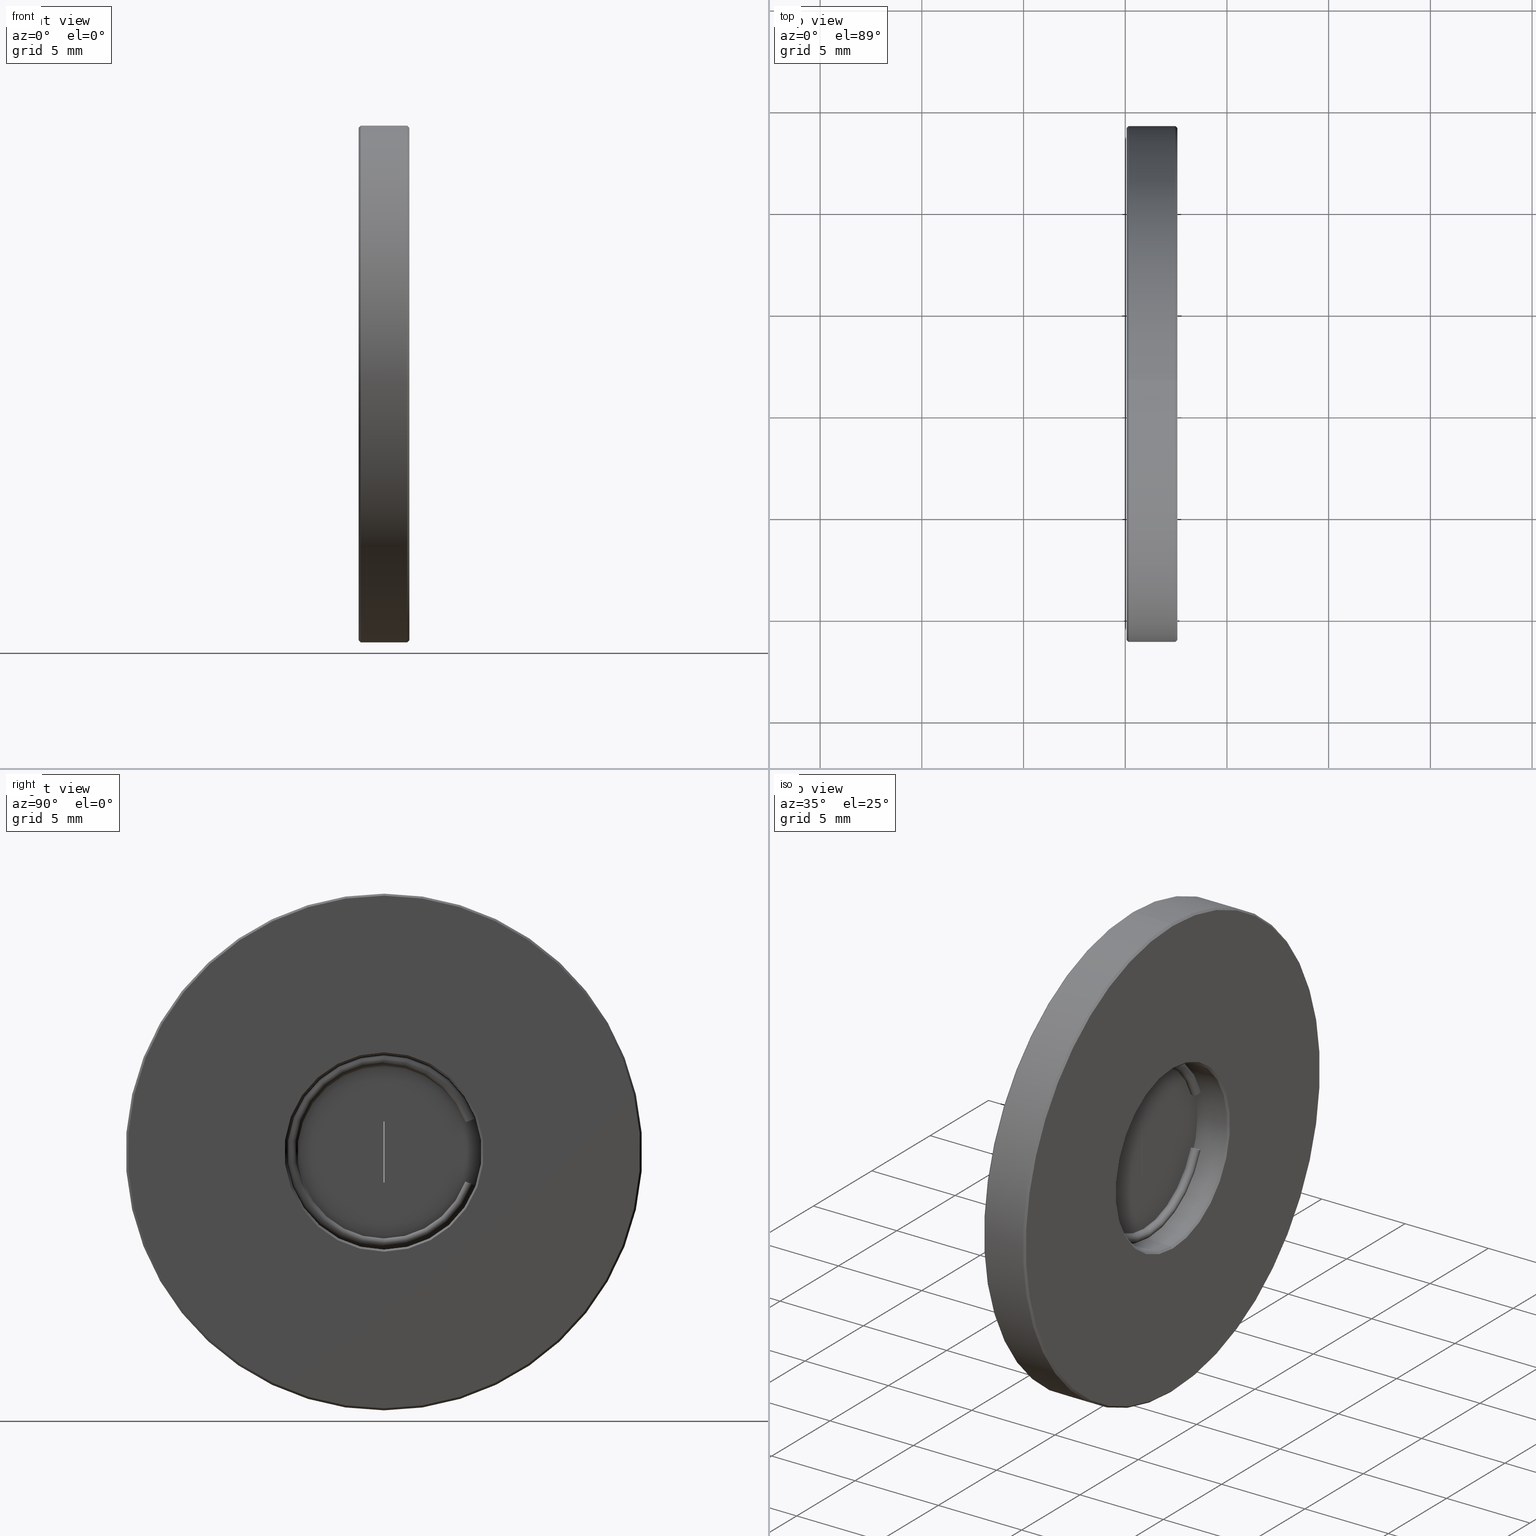
[diagram: canonical four-view strip — front | top / right | iso, engineering-drawing reading convention]
A machine part, canonical four-view strip (front | top / right | iso — engineering-drawing reading convention). The complete STEP part file that produces these views, byte-faithful:
ISO-10303-21;
HEADER;
FILE_DESCRIPTION (( 'STEP AP203' ),
    '1' );
FILE_NAME ('528054.STEP',
    '2023-04-06T08:10:59',
    ( '1337953205@qq.com' ),
    ( '' ),
    'SwSTEP 2.0',
    'SolidWorks 2020',
    '' );
FILE_SCHEMA (( 'CONFIG_CONTROL_DESIGN' ));
ENDSEC;

DATA;
#1 = EDGE_CURVE ( 'NONE', #446, #434, #242, .T. ) ;
#2 = LINE ( 'NONE', #875, #551 ) ;
#3 = ORIENTED_EDGE ( 'NONE', *, *, #211, .F. ) ;
#4 = EDGE_LOOP ( 'NONE', ( #26, #758, #824, #227 ) ) ;
#5 = EDGE_CURVE ( 'NONE', #496, #565, #749, .T. ) ;
#6 = CARTESIAN_POINT ( 'NONE',  ( -4.034863851253000178, 1.436758840805285820, 21.14999999999999858 ) ) ;
#7 = VERTEX_POINT ( 'NONE', #677 ) ;
#8 = ORIENTED_EDGE ( 'NONE', *, *, #881, .F. ) ;
#9 = CIRCLE ( 'NONE', #197, 4.750000000000000000 ) ;
#10 = EDGE_CURVE ( 'NONE', #7, #591, #9, .T. ) ;
#11 = DIRECTION ( 'NONE',  ( 1.000000000000000000, 0.000000000000000000, 0.000000000000000000 ) ) ;
#12 = AXIS2_PLACEMENT_3D ( 'NONE', #904, #465, #109 ) ;
#13 = DIRECTION ( 'NONE',  ( 0.000000000000000000, 0.000000000000000000, -1.000000000000000000 ) ) ;
#14 = CIRCLE ( 'NONE', #671, 3.700000000000001954 ) ;
#15 = ORIENTED_EDGE ( 'NONE', *, *, #211, .T. ) ;
#16 = ORIENTED_EDGE ( 'NONE', *, *, #651, .T. ) ;
#17 = DIRECTION ( 'NONE',  ( 0.000000000000000000, 0.000000000000000000, -1.000000000000000000 ) ) ;
#18 = LINE ( 'NONE', #23, #552 ) ;
#19 = DIRECTION ( 'NONE',  ( 1.000000000000000000, 0.000000000000000000, 0.000000000000000000 ) ) ;
#20 = CC_DESIGN_DATE_AND_TIME_ASSIGNMENT ( #224, #796, ( #444 ) ) ;
#21 = ORIENTED_EDGE ( 'NONE', *, *, #303, .F. ) ;
#22 = LINE ( 'NONE', #743, #822 ) ;
#23 = CARTESIAN_POINT ( 'NONE',  ( -4.934863851252999645, 1.436758841085000071, 29.19999999999999929 ) ) ;
#24 = DIRECTION ( 'NONE',  ( 0.000000000000000000, -1.000000000000000000, 0.000000000000000000 ) ) ;
#25 = ADVANCED_FACE ( 'NONE', ( #694 ), #179, .T. ) ;
#26 = ORIENTED_EDGE ( 'NONE', *, *, #889, .F. ) ;
#27 = LINE ( 'NONE', #170, #597 ) ;
#28 = LINE ( 'NONE', #318, #379 ) ;
#29 = DIRECTION ( 'NONE',  ( 1.000000000000000000, 0.000000000000000000, 0.000000000000000000 ) ) ;
#30 = AXIS2_PLACEMENT_3D ( 'NONE', #869, #145, #940 ) ;
#31 = CIRCLE ( 'NONE', #911, 3.700000000000001954 ) ;
#32 = AXIS2_PLACEMENT_3D ( 'NONE', #172, #691, #680 ) ;
#33 = ADVANCED_FACE ( 'NONE', ( #463, #96 ), #478, .F. ) ;
#34 = ORIENTED_EDGE ( 'NONE', *, *, #38, .T. ) ;
#35 = CARTESIAN_POINT ( 'NONE',  ( -4.034863851253005507, 1.436758841381168494, 29.89999999999999858 ) ) ;
#36 = DIRECTION ( 'NONE',  ( -1.000000000000000000, 3.469446951953611033E-15, 0.000000000000000000 ) ) ;
#37 = CARTESIAN_POINT ( 'NONE',  ( -4.934863851252999645, 1.436758841085000071, 25.39999999999999858 ) ) ;
#38 = EDGE_CURVE ( 'NONE', #434, #741, #768, .T. ) ;
#39 = CARTESIAN_POINT ( 'NONE',  ( -18.51131405003469865, 1.436758841085000737, 30.19999999999999929 ) ) ;
#40 = DIRECTION ( 'NONE',  ( 0.000000000000000000, 0.000000000000000000, 1.000000000000000000 ) ) ;
#41 = PLANE ( 'NONE',  #276 ) ;
#42 = DIRECTION ( 'NONE',  ( -1.000000000000000000, 0.000000000000000000, 0.000000000000000000 ) ) ;
#43 = CC_DESIGN_PERSON_AND_ORGANIZATION_ASSIGNMENT ( #152, #654, ( #213 ) ) ;
#44 = APPLICATION_PROTOCOL_DEFINITION ( 'international standard', 'config_control_design', 1994, #618 ) ;
#45 = CARTESIAN_POINT ( 'NONE',  ( -4.334863851253000000, 1.436758841085000071, 25.39999999999999858 ) ) ;
#46 = PRODUCT ( '528054', '528054', '', ( #706 ) ) ;
#47 = CIRCLE ( 'NONE', #121, 12.59999999999999964 ) ;
#48 = AXIS2_PLACEMENT_3D ( 'NONE', #753, #248, #401 ) ;
#49 = DIRECTION ( 'NONE',  ( 0.000000000000000000, 0.000000000000000000, -1.000000000000000000 ) ) ;
#50 = CARTESIAN_POINT ( 'NONE',  ( -4.834863851252999112, 1.436758841085000071, 25.39999999999999858 ) ) ;
#51 = ORIENTED_EDGE ( 'NONE', *, *, #393, .F. ) ;
#52 = CARTESIAN_POINT ( 'NONE',  ( -4.034863851252989519, 5.430452479329460402, 23.94641439060306709 ) ) ;
#53 = CARTESIAN_POINT ( 'NONE',  ( -4.334863851253000000, 1.436758841085000071, 21.69999999999999574 ) ) ;
#54 = EDGE_LOOP ( 'NONE', ( #847, #454 ) ) ;
#55 = EDGE_CURVE ( 'NONE', #367, #925, #388, .T. ) ;
#56 = CYLINDRICAL_SURFACE ( 'NONE', #89, 4.799999999999998934 ) ;
#57 = PERSON_AND_ORGANIZATION_ROLE ( 'creator' ) ;
#58 = DIRECTION ( 'NONE',  ( -1.000000000000000000, 0.000000000000000000, 0.000000000000000000 ) ) ;
#59 = EDGE_LOOP ( 'NONE', ( #66, #358 ) ) ;
#60 = VECTOR ( 'NONE', #510, 1000.000000000000000 ) ;
#61 = CIRCLE ( 'NONE', #585, 12.59999999999999964 ) ;
#62 = VERTEX_POINT ( 'NONE', #91 ) ;
#63 = CARTESIAN_POINT ( 'NONE',  ( -4.934863851252999645, 1.436758841085000071, 21.69999999999999574 ) ) ;
#64 = AXIS2_PLACEMENT_3D ( 'NONE', #832, #309, #111 ) ;
#65 = CARTESIAN_POINT ( 'NONE',  ( -4.034863851253000178, 1.436758841085000071, 25.39999999999999858 ) ) ;
#66 = ORIENTED_EDGE ( 'NONE', *, *, #771, .T. ) ;
#67 = ADVANCED_FACE ( 'NONE', ( #624 ), #328, .T. ) ;
#68 = SHAPE_DEFINITION_REPRESENTATION ( #744, #398 ) ;
#69 = CARTESIAN_POINT ( 'NONE',  ( -4.034863851253018829, 5.665375634520317227, 23.86090935475618835 ) ) ;
#70 = VERTEX_POINT ( 'NONE', #621 ) ;
#71 = CARTESIAN_POINT ( 'NONE',  ( -4.334863851253000000, 1.436758841085000071, 25.39999999999999858 ) ) ;
#72 = ADVANCED_FACE ( 'NONE', ( #761 ), #226, .T. ) ;
#73 = VERTEX_POINT ( 'NONE', #892 ) ;
#74 = ORIENTED_EDGE ( 'NONE', *, *, #909, .T. ) ;
#75 = CIRCLE ( 'NONE', #837, 4.799999999999998934 ) ;
#76 = AXIS2_PLACEMENT_3D ( 'NONE', #175, #166, #462 ) ;
#77 = DIRECTION ( 'NONE',  ( 1.000000000000000000, 0.000000000000000000, 0.000000000000000000 ) ) ;
#78 = ORIENTED_EDGE ( 'NONE', *, *, #55, .T. ) ;
#79 = COORDINATED_UNIVERSAL_TIME_OFFSET ( 8, 0, .AHEAD. ) ;
#80 = FACE_OUTER_BOUND ( 'NONE', #858, .T. ) ;
#81 = ORIENTED_EDGE ( 'NONE', *, *, #732, .F. ) ;
#82 = ADVANCED_FACE ( 'NONE', ( #392, #404 ), #41, .T. ) ;
#83 = ORIENTED_EDGE ( 'NONE', *, *, #636, .T. ) ;
#84 = DIRECTION ( 'NONE',  ( 0.000000000000000000, 0.000000000000000000, -1.000000000000000000 ) ) ;
#85 = EDGE_LOOP ( 'NONE', ( #458, #786, #78, #423 ) ) ;
#86 = ORIENTED_EDGE ( 'NONE', *, *, #537, .F. ) ;
#87 = VECTOR ( 'NONE', #886, 1000.000000000000000 ) ;
#88 = DIRECTION ( 'NONE',  ( 0.000000000000000000, 0.000000000000000000, -1.000000000000000000 ) ) ;
#89 = AXIS2_PLACEMENT_3D ( 'NONE', #116, #259, #409 ) ;
#90 = DIRECTION ( 'NONE',  ( -0.7071067811865510144, 8.659560562354890950E-17, -0.7071067811865441310 ) ) ;
#91 = CARTESIAN_POINT ( 'NONE',  ( -4.284863851253000178, 1.424258841085000116, 26.89999999999999858 ) ) ;
#92 = ORIENTED_EDGE ( 'NONE', *, *, #337, .F. ) ;
#93 = DIRECTION ( 'NONE',  ( 1.000000000000000000, 0.000000000000000000, 0.000000000000000000 ) ) ;
#94 = EDGE_CURVE ( 'NONE', #737, #62, #321, .T. ) ;
#95 = LINE ( 'NONE', #325, #287 ) ;
#96 = FACE_BOUND ( 'NONE', #130, .T. ) ;
#97 = EDGE_LOOP ( 'NONE', ( #135, #666, #598, #515 ) ) ;
#98 = DIRECTION ( 'NONE',  ( -1.000000000000000000, 3.469446951953611033E-15, 0.000000000000000000 ) ) ;
#99 = DIRECTION ( 'NONE',  ( 0.000000000000000000, 0.000000000000000000, -1.000000000000000000 ) ) ;
#100 = DIRECTION ( 'NONE',  ( 0.000000000000000000, 1.000000000000000000, 0.000000000000000000 ) ) ;
#101 = EDGE_CURVE ( 'NONE', #372, #631, #596, .T. ) ;
#102 = VERTEX_POINT ( 'NONE', #906 ) ;
#103 = DIRECTION ( 'NONE',  ( -0.7071067811865415775, 0.000000000000000000, 0.7071067811865535679 ) ) ;
#104 = DIRECTION ( 'NONE',  ( -1.000000000000000000, 0.000000000000000000, 0.000000000000000000 ) ) ;
#105 = PLANE ( 'NONE',  #48 ) ;
#106 = AXIS2_PLACEMENT_3D ( 'NONE', #177, #548, #88 ) ;
#107 = AXIS2_PLACEMENT_3D ( 'NONE', #627, #339, #329 ) ;
#108 = ADVANCED_FACE ( 'NONE', ( #604 ), #105, .T. ) ;
#109 = DIRECTION ( 'NONE',  ( -1.000000000000000000, 0.000000000000000000, 0.000000000000000000 ) ) ;
#110 = LINE ( 'NONE', #815, #300 ) ;
#111 = DIRECTION ( 'NONE',  ( 0.000000000000000000, 0.000000000000000000, 1.000000000000000000 ) ) ;
#112 = ADVANCED_FACE ( 'NONE', ( #252 ), #556, .T. ) ;
#113 = CARTESIAN_POINT ( 'NONE',  ( -4.034863851252984190, 5.900298789925018994, 27.02459568050306515 ) ) ;
#114 = PERSON_AND_ORGANIZATION_ROLE ( 'design_owner' ) ;
#115 = DIRECTION ( 'NONE',  ( 0.000000000000000000, 0.000000000000000000, -1.000000000000000000 ) ) ;
#116 = CARTESIAN_POINT ( 'NONE',  ( -18.51131405003469865, 1.436758841085000071, 25.39999999999999858 ) ) ;
#117 = CARTESIAN_POINT ( 'NONE',  ( -4.284863851253000178, 1.449258841085000027, 26.89999999999999858 ) ) ;
#118 = VECTOR ( 'NONE', #620, 1000.000000000000000 ) ;
#119 = ORIENTED_EDGE ( 'NONE', *, *, #405, .T. ) ;
#120 = CONICAL_SURFACE ( 'NONE', #397, 4.900000000000001243, 0.7853981633974433940 ) ;
#121 = AXIS2_PLACEMENT_3D ( 'NONE', #265, #278, #407 ) ;
#122 = CARTESIAN_POINT ( 'NONE',  ( -4.034863851253018829, 5.665375634722910725, 26.93909064468711634 ) ) ;
#123 = APPLICATION_PROTOCOL_DEFINITION ( 'international standard', 'config_control_design', 1994, #366 ) ;
#124 = DIRECTION ( 'NONE',  ( 0.000000000000000000, 0.000000000000000000, 1.000000000000000000 ) ) ;
#125 = EDGE_CURVE ( 'NONE', #220, #852, #236, .T. ) ;
#126 = ORIENTED_EDGE ( 'NONE', *, *, #862, .F. ) ;
#127 = CARTESIAN_POINT ( 'NONE',  ( -4.834863851252998224, 1.436758841085000071, 25.39999999999999858 ) ) ;
#128 = DIRECTION ( 'NONE',  ( 1.000000000000000000, -3.053113317719177725E-15, -1.221245326846538123E-15 ) ) ;
#129 = EDGE_CURVE ( 'NONE', #543, #612, #136, .T. ) ;
#130 = EDGE_LOOP ( 'NONE', ( #668, #452 ) ) ;
#131 = MANIFOLD_SOLID_BREP ( 'NONE', #779 ) ;
#132 = CARTESIAN_POINT ( 'NONE',  ( -2.534863851253000178, 1.436758841085000071, 25.39999999999999858 ) ) ;
#133 = PERSON_AND_ORGANIZATION ( #661, #275 ) ;
#134 = CARTESIAN_POINT ( 'NONE',  ( -4.034863851253000178, 1.436758841085000071, 25.39999999999999858 ) ) ;
#135 = ORIENTED_EDGE ( 'NONE', *, *, #479, .F. ) ;
#136 = CIRCLE ( 'NONE', #648, 4.750000000000000000 ) ;
#137 = AXIS2_PLACEMENT_3D ( 'NONE', #810, #77, #872 ) ;
#138 = AXIS2_PLACEMENT_3D ( 'NONE', #230, #104, #160 ) ;
#139 = ORIENTED_EDGE ( 'NONE', *, *, #232, .F. ) ;
#140 = DIRECTION ( 'NONE',  ( 0.000000000000000000, 0.000000000000000000, -1.000000000000000000 ) ) ;
#141 = AXIS2_PLACEMENT_3D ( 'NONE', #485, #712, #336 ) ;
#142 = DIRECTION ( 'NONE',  ( 0.000000000000000000, 0.000000000000000000, -1.000000000000000000 ) ) ;
#143 = VERTEX_POINT ( 'NONE', #781 ) ;
#144 = EDGE_CURVE ( 'NONE', #631, #492, #539, .T. ) ;
#145 = DIRECTION ( 'NONE',  ( 1.000000000000000000, 0.000000000000000000, 0.000000000000000000 ) ) ;
#146 = ORIENTED_EDGE ( 'NONE', *, *, #942, .F. ) ;
#147 = CARTESIAN_POINT ( 'NONE',  ( -4.834863851252999112, 1.436758841085000071, 25.39999999999999858 ) ) ;
#148 = ORIENTED_EDGE ( 'NONE', *, *, #232, .T. ) ;
#149 = ORIENTED_EDGE ( 'NONE', *, *, #291, .F. ) ;
#150 = VECTOR ( 'NONE', #856, 1000.000000000000000 ) ;
#151 = CIRCLE ( 'NONE', #274, 4.250000000000000000 ) ;
#152 = PERSON_AND_ORGANIZATION ( #661, #275 ) ;
#153 = EDGE_LOOP ( 'NONE', ( #146, #863, #883, #139 ) ) ;
#154 = ORIENTED_EDGE ( 'NONE', *, *, #651, .F. ) ;
#155 = FACE_BOUND ( 'NONE', #168, .T. ) ;
#156 = MANIFOLD_SOLID_BREP ( 'NONE', #765 ) ;
#157 = ORIENTED_EDGE ( 'NONE', *, *, #479, .T. ) ;
#158 = ORIENTED_EDGE ( 'NONE', *, *, #881, .T. ) ;
#159 = CARTESIAN_POINT ( 'NONE',  ( -4.934863851252999645, 1.436758841085000071, 12.79999999999999893 ) ) ;
#160 = DIRECTION ( 'NONE',  ( 0.000000000000000000, 0.000000000000000000, 1.000000000000000000 ) ) ;
#161 = VERTEX_POINT ( 'NONE', #282 ) ;
#162 = ORIENTED_EDGE ( 'NONE', *, *, #508, .T. ) ;
#163 = ADVANCED_FACE ( 'NONE', ( #936 ), #770, .T. ) ;
#164 = DIRECTION ( 'NONE',  ( -1.000000000000000000, 0.000000000000000000, 0.000000000000000000 ) ) ;
#165 = TOROIDAL_SURFACE ( 'NONE', #521, 4.500000000000000000, 0.2500000000000000000 ) ;
#166 = DIRECTION ( 'NONE',  ( 1.000000000000000000, 0.000000000000000000, 0.000000000000000000 ) ) ;
#167 = DIRECTION ( 'NONE',  ( 0.000000000000000000, 1.000000000000000000, 0.000000000000000000 ) ) ;
#168 = EDGE_LOOP ( 'NONE', ( #267, #353, #811, #293 ) ) ;
#169 = ADVANCED_FACE ( 'NONE', ( #341 ), #839, .T. ) ;
#170 = CARTESIAN_POINT ( 'NONE',  ( -4.284863851253000178, 1.424258841085000116, 26.89999999999999858 ) ) ;
#171 = DIRECTION ( 'NONE',  ( 3.104242009642707308E-15, 1.000000000000000000, -6.581577388350236595E-11 ) ) ;
#172 = CARTESIAN_POINT ( 'NONE',  ( -2.534863851253000178, 1.436758841085000071, 25.39999999999999858 ) ) ;
#173 = ORIENTED_EDGE ( 'NONE', *, *, #874, .T. ) ;
#174 = CARTESIAN_POINT ( 'NONE',  ( -4.334863851253000000, 1.449258841085000027, 26.89999999999999858 ) ) ;
#175 = CARTESIAN_POINT ( 'NONE',  ( -4.934863851252999645, 1.436758841085000071, 25.39999999999999858 ) ) ;
#176 = DIRECTION ( 'NONE',  ( 0.000000000000000000, -1.000000000000000000, 0.000000000000000000 ) ) ;
#177 = CARTESIAN_POINT ( 'NONE',  ( -4.334863851253000000, 1.436758841085000071, 25.39999999999999858 ) ) ;
#178 = FACE_OUTER_BOUND ( 'NONE', #573, .T. ) ;
#179 = CYLINDRICAL_SURFACE ( 'NONE', #734, 4.750000000000000000 ) ;
#180 = CONICAL_SURFACE ( 'NONE', #943, 12.69999999999999929, 0.7853981633974568277 ) ;
#181 = EDGE_CURVE ( 'NONE', #565, #592, #418, .T. ) ;
#182 = CC_DESIGN_APPROVAL ( #295, ( #213 ) ) ;
#183 = AXIS2_PLACEMENT_3D ( 'NONE', #37, #547, #468 ) ;
#184 = PLANE ( 'NONE',  #730 ) ;
#185 = PERSON_AND_ORGANIZATION ( #661, #275 ) ;
#186 = CARTESIAN_POINT ( 'NONE',  ( -4.934863851252999645, 1.436758841085000515, 21.59999999999999787 ) ) ;
#187 = CARTESIAN_POINT ( 'NONE',  ( -4.334863851253000000, -3.313241158914999929, 25.39999999999999858 ) ) ;
#188 = CARTESIAN_POINT ( 'NONE',  ( -4.034863851252994849, 1.436758840788832314, 20.89999999999999858 ) ) ;
#189 = FACE_OUTER_BOUND ( 'NONE', #660, .T. ) ;
#190 = EDGE_LOOP ( 'NONE', ( #205, #899, #529, #233 ) ) ;
#191 = ADVANCED_FACE ( 'NONE', ( #924 ), #555, .T. ) ;
#192 = DIRECTION ( 'NONE',  ( 1.000000000000000000, -3.053113317719177725E-15, -1.221245326846538123E-15 ) ) ;
#193 = FACE_BOUND ( 'NONE', #589, .T. ) ;
#194 = TOROIDAL_SURFACE ( 'NONE', #776, 4.500000000000000000, 0.2500000000000000000 ) ;
#195 = EDGE_LOOP ( 'NONE', ( #371, #356, #83, #731 ) ) ;
#196 = AXIS2_PLACEMENT_3D ( 'NONE', #132, #918, #49 ) ;
#197 = AXIS2_PLACEMENT_3D ( 'NONE', #243, #29, #24 ) ;
#198 = DIRECTION ( 'NONE',  ( -1.000000000000000000, 0.000000000000000000, 0.000000000000000000 ) ) ;
#199 = APPROVAL ( #638, 'δָ��' ) ;
#200 = DATE_TIME_ROLE ( 'creation_date' ) ;
#201 = ORIENTED_EDGE ( 'NONE', *, *, #1, .T. ) ;
#202 = FACE_OUTER_BOUND ( 'NONE', #656, .T. ) ;
#203 = CARTESIAN_POINT ( 'NONE',  ( -2.434863851252999645, 1.436758841085000071, 38.00000000000000000 ) ) ;
#204 = CARTESIAN_POINT ( 'NONE',  ( -4.834863851252999112, 1.436758841085000071, 12.69999999999999929 ) ) ;
#205 = ORIENTED_EDGE ( 'NONE', *, *, #424, .F. ) ;
#206 = EDGE_CURVE ( 'NONE', #161, #852, #672, .T. ) ;
#207 = DIRECTION ( 'NONE',  ( -1.221245327047478942E-15, -6.581508912423552347E-11, -1.000000000000000000 ) ) ;
#208 = CARTESIAN_POINT ( 'NONE',  ( -4.834863851252999112, 1.436758841085000071, 25.39999999999999858 ) ) ;
#209 = VERTEX_POINT ( 'NONE', #851 ) ;
#210 = AXIS2_PLACEMENT_3D ( 'NONE', #632, #928, #487 ) ;
#211 = EDGE_CURVE ( 'NONE', #592, #305, #629, .T. ) ;
#212 = VECTOR ( 'NONE', #919, 1000.000000000000000 ) ;
#213 = PRODUCT_DEFINITION_FORMATION_WITH_SPECIFIED_SOURCE ( '�κ�', '', #46, .NOT_KNOWN. ) ;
#214 = DIRECTION ( 'NONE',  ( 3.469446951953611033E-15, -0.9396926207634005435, 0.3420201433875083574 ) ) ;
#215 = ORIENTED_EDGE ( 'NONE', *, *, #871, .F. ) ;
#216 = CARTESIAN_POINT ( 'NONE',  ( -4.034863851253018829, 5.665375634722910725, 26.93909064468711634 ) ) ;
#217 = ORIENTED_EDGE ( 'NONE', *, *, #751, .F. ) ;
#218 = EDGE_CURVE ( 'NONE', #70, #809, #880, .T. ) ;
#219 = FACE_OUTER_BOUND ( 'NONE', #818, .T. ) ;
#220 = VERTEX_POINT ( 'NONE', #346 ) ;
#221 = ORIENTED_EDGE ( 'NONE', *, *, #916, .F. ) ;
#222 = AXIS2_PLACEMENT_3D ( 'NONE', #728, #370, #301 ) ;
#223 = VECTOR ( 'NONE', #831, 1000.000000000000000 ) ;
#224 = DATE_AND_TIME ( #935, #319 ) ;
#225 = CARTESIAN_POINT ( 'NONE',  ( -2.434863851252999645, 1.436758841085000071, 25.39999999999999858 ) ) ;
#226 = CONICAL_SURFACE ( 'NONE', #64, 12.59999999999999964, 0.7853981633974568277 ) ;
#227 = ORIENTED_EDGE ( 'NONE', *, *, #611, .F. ) ;
#228 = ORIENTED_EDGE ( 'NONE', *, *, #862, .T. ) ;
#229 = CARTESIAN_POINT ( 'NONE',  ( -2.534863851253000178, 1.436758841085000737, 30.19999999999999929 ) ) ;
#230 = CARTESIAN_POINT ( 'NONE',  ( -4.934863851252999645, 1.436758841085000071, 25.39999999999999858 ) ) ;
#231 = VERTEX_POINT ( 'NONE', #53 ) ;
#232 = EDGE_CURVE ( 'NONE', #102, #231, #698, .T. ) ;
#233 = ORIENTED_EDGE ( 'NONE', *, *, #900, .T. ) ;
#234 = DIRECTION ( 'NONE',  ( 2.191821476484100505E-15, -0.3420201433875063035, -0.9396926207634014316 ) ) ;
#235 = CARTESIAN_POINT ( 'NONE',  ( -2.434863851252999645, 1.436758841085000071, 25.39999999999999858 ) ) ;
#236 = LINE ( 'NONE', #821, #302 ) ;
#237 = ADVANCED_FACE ( 'NONE', ( #193, #639 ), #271, .T. ) ;
#238 = ORIENTED_EDGE ( 'NONE', *, *, #802, .T. ) ;
#239 = LINE ( 'NONE', #174, #118 ) ;
#240 = CIRCLE ( 'NONE', #613, 4.750000000000000000 ) ;
#241 = CARTESIAN_POINT ( 'NONE',  ( -4.034863851253000178, 1.436758841085000071, 25.39999999999999858 ) ) ;
#242 = CIRCLE ( 'NONE', #32, 4.799999999999998934 ) ;
#243 = CARTESIAN_POINT ( 'NONE',  ( -4.284863851253000178, 1.436758841085000071, 25.39999999999999858 ) ) ;
#244 = ORIENTED_EDGE ( 'NONE', *, *, #848, .T. ) ;
#245 = CARTESIAN_POINT ( 'NONE',  ( -4.034863851253018829, 5.665375634722910725, 26.93909064468711634 ) ) ;
#246 = PRODUCT_RELATED_PRODUCT_CATEGORY ( 'detail', '', ( #46 ) ) ;
#247 = DIRECTION ( 'NONE',  ( 1.000000000000000000, 0.000000000000000000, 0.000000000000000000 ) ) ;
#248 = DIRECTION ( 'NONE',  ( 0.000000000000000000, 0.000000000000000000, -1.000000000000000000 ) ) ;
#249 = LINE ( 'NONE', #39, #87 ) ;
#250 = ADVANCED_FACE ( 'NONE', ( #581 ), #853, .T. ) ;
#251 = DIRECTION ( 'NONE',  ( -1.221245327047478942E-15, -6.581508912423552347E-11, -1.000000000000000000 ) ) ;
#252 = FACE_OUTER_BOUND ( 'NONE', #306, .T. ) ;
#253 = FACE_OUTER_BOUND ( 'NONE', #415, .T. ) ;
#254 = CIRCLE ( 'NONE', #376, 0.2500000000000000000 ) ;
#255 = PERSON_AND_ORGANIZATION ( #661, #275 ) ;
#256 = CARTESIAN_POINT ( 'NONE',  ( -4.284863851253000178, 1.436758841085000071, 25.39999999999999858 ) ) ;
#257 = AXIS2_PLACEMENT_3D ( 'NONE', #755, #901, #683 ) ;
#258 = AXIS2_PLACEMENT_3D ( 'NONE', #778, #480, #907 ) ;
#259 = DIRECTION ( 'NONE',  ( 1.000000000000000000, 0.000000000000000000, 0.000000000000000000 ) ) ;
#260 = CALENDAR_DATE ( 2023, 6, 4 ) ;
#261 = CARTESIAN_POINT ( 'NONE',  ( -4.034863851253000178, 1.436758841085000071, 25.39999999999999858 ) ) ;
#262 = ORIENTED_EDGE ( 'NONE', *, *, #373, .F. ) ;
#263 = EDGE_CURVE ( 'NONE', #662, #209, #702, .T. ) ;
#264 = CARTESIAN_POINT ( 'NONE',  ( -4.834863851252999112, 1.436758841085001626, 12.69999999999999929 ) ) ;
#265 = CARTESIAN_POINT ( 'NONE',  ( -4.934863851252999645, 1.436758841085000071, 25.39999999999999858 ) ) ;
#266 = DIRECTION ( 'NONE',  ( 1.000000000000000000, -3.053113317719177725E-15, -1.221245326846538123E-15 ) ) ;
#267 = ORIENTED_EDGE ( 'NONE', *, *, #762, .F. ) ;
#268 = ADVANCED_FACE ( 'NONE', ( #189 ), #194, .T. ) ;
#269 = CARTESIAN_POINT ( 'NONE',  ( -2.434863851252999645, 1.436758841085000071, 25.39999999999999858 ) ) ;
#270 = CALENDAR_DATE ( 2023, 6, 4 ) ;
#271 = PLANE ( 'NONE',  #669 ) ;
#272 = AXIS2_PLACEMENT_3D ( 'NONE', #69, #590, #214 ) ;
#273 = VERTEX_POINT ( 'NONE', #186 ) ;
#274 = AXIS2_PLACEMENT_3D ( 'NONE', #344, #192, #913 ) ;
#275 = ORGANIZATION ( 'δָ��', 'δָ��', '' ) ;
#276 = AXIS2_PLACEMENT_3D ( 'NONE', #685, #19, #384 ) ;
#277 = FACE_OUTER_BOUND ( 'NONE', #799, .T. ) ;
#278 = DIRECTION ( 'NONE',  ( -1.000000000000000000, 0.000000000000000000, 0.000000000000000000 ) ) ;
#279 = DIRECTION ( 'NONE',  ( 0.000000000000000000, 1.000000000000000000, 0.000000000000000000 ) ) ;
#280 = EDGE_LOOP ( 'NONE', ( #866, #438 ) ) ;
#281 = CARTESIAN_POINT ( 'NONE',  ( -4.934863851252999645, 1.436758841085000071, 25.39999999999999858 ) ) ;
#282 = CARTESIAN_POINT ( 'NONE',  ( -2.534863851253000178, 1.436758841085000071, 38.09999999999999432 ) ) ;
#283 = EDGE_CURVE ( 'NONE', #73, #741, #443, .T. ) ;
#284 = ORIENTED_EDGE ( 'NONE', *, *, #218, .F. ) ;
#285 = FACE_OUTER_BOUND ( 'NONE', #682, .T. ) ;
#286 = ORIENTED_EDGE ( 'NONE', *, *, #942, .T. ) ;
#287 = VECTOR ( 'NONE', #308, 1000.000000000000000 ) ;
#288 = AXIS2_PLACEMENT_3D ( 'NONE', #841, #40, #489 ) ;
#289 = CARTESIAN_POINT ( 'NONE',  ( -4.284863851253000178, 1.449258841085000027, 23.89999999999999858 ) ) ;
#290 = ORIENTED_EDGE ( 'NONE', *, *, #101, .T. ) ;
#291 = EDGE_CURVE ( 'NONE', #500, #273, #686, .T. ) ;
#292 = DIRECTION ( 'NONE',  ( 0.000000000000000000, 0.000000000000000000, -1.000000000000000000 ) ) ;
#293 = ORIENTED_EDGE ( 'NONE', *, *, #94, .F. ) ;
#294 = EDGE_LOOP ( 'NONE', ( #162, #338, #157, #342 ) ) ;
#295 = APPROVAL ( #331, 'δָ��' ) ;
#296 = DIRECTION ( 'NONE',  ( 1.000000000000000000, 0.000000000000000000, 0.000000000000000000 ) ) ;
#297 = ORIENTED_EDGE ( 'NONE', *, *, #874, .F. ) ;
#298 = ORIENTED_EDGE ( 'NONE', *, *, #518, .F. ) ;
#299 = AXIS2_PLACEMENT_3D ( 'NONE', #879, #448, #292 ) ;
#300 = VECTOR ( 'NONE', #90, 999.9999999999998863 ) ;
#301 = DIRECTION ( 'NONE',  ( 0.000000000000000000, -1.000000000000000000, 0.000000000000000000 ) ) ;
#302 = VECTOR ( 'NONE', #422, 1000.000000000000000 ) ;
#303 = EDGE_CURVE ( 'NONE', #665, #492, #568, .T. ) ;
#304 = LINE ( 'NONE', #603, #223 ) ;
#305 = VERTEX_POINT ( 'NONE', #357 ) ;
#306 = EDGE_LOOP ( 'NONE', ( #941, #74, #15, #8 ) ) ;
#307 = FACE_OUTER_BOUND ( 'NONE', #931, .T. ) ;
#308 = DIRECTION ( 'NONE',  ( 0.000000000000000000, 0.000000000000000000, 1.000000000000000000 ) ) ;
#309 = DIRECTION ( 'NONE',  ( -1.000000000000000000, 0.000000000000000000, 0.000000000000000000 ) ) ;
#310 = EDGE_CURVE ( 'NONE', #602, #70, #716, .T. ) ;
#311 = ORIENTED_EDGE ( 'NONE', *, *, #611, .T. ) ;
#312 = CARTESIAN_POINT ( 'NONE',  ( -4.334863851253000000, 1.449258841085000027, 26.89999999999999858 ) ) ;
#313 = CARTESIAN_POINT ( 'NONE',  ( -4.934863851252999645, 1.436758841085000071, 25.39999999999999858 ) ) ;
#314 = DIRECTION ( 'NONE',  ( 0.000000000000000000, 1.000000000000000000, 0.000000000000000000 ) ) ;
#315 = ORIENTED_EDGE ( 'NONE', *, *, #812, .F. ) ;
#316 = CIRCLE ( 'NONE', #106, 3.700000000000001954 ) ;
#317 = CARTESIAN_POINT ( 'NONE',  ( -4.034863851253018829, 5.665375634520317227, 23.86090935475618835 ) ) ;
#318 = CARTESIAN_POINT ( 'NONE',  ( -2.434863851252999645, 1.436758841085000071, 38.09999999999999432 ) ) ;
#319 = LOCAL_TIME ( 16, 10, 59.00000000000000000, #878 ) ;
#320 = AXIS2_PLACEMENT_3D ( 'NONE', #908, #903, #456 ) ;
#321 = LINE ( 'NONE', #617, #400 ) ;
#322 = ORIENTED_EDGE ( 'NONE', *, *, #619, .F. ) ;
#323 = EDGE_CURVE ( 'NONE', #925, #469, #865, .T. ) ;
#324 = CARTESIAN_POINT ( 'NONE',  ( -4.834863851252999112, 1.436758841085000071, 25.39999999999999858 ) ) ;
#325 = CARTESIAN_POINT ( 'NONE',  ( -4.284863851253000178, 1.449258841085000027, 26.89999999999999858 ) ) ;
#326 = DIRECTION ( 'NONE',  ( -1.000000000000000000, 0.000000000000000000, 0.000000000000000000 ) ) ;
#327 = CARTESIAN_POINT ( 'NONE',  ( -2.434863851252999645, 1.436758841085000071, 20.49999999999999645 ) ) ;
#328 = PLANE ( 'NONE',  #461 ) ;
#329 = DIRECTION ( 'NONE',  ( 0.000000000000000000, 0.000000000000000000, -1.000000000000000000 ) ) ;
#330 = CIRCLE ( 'NONE', #222, 4.750000000000000000 ) ;
#331 = APPROVAL_STATUS ( 'not_yet_approved' ) ;
#332 = DIRECTION ( 'NONE',  ( 1.000000000000000000, -3.053113317719177725E-15, -1.221245326846538123E-15 ) ) ;
#333 = CONICAL_SURFACE ( 'NONE', #944, 3.800000000000001155, 0.7853981633974433940 ) ;
#334 = ADVANCED_FACE ( 'NONE', ( #285 ), #514, .F. ) ;
#335 = DIRECTION ( 'NONE',  ( 0.000000000000000000, 0.000000000000000000, -1.000000000000000000 ) ) ;
#336 = DIRECTION ( 'NONE',  ( -1.221245327047478942E-15, -6.581508912423552347E-11, -1.000000000000000000 ) ) ;
#337 = EDGE_CURVE ( 'NONE', #369, #446, #2, .T. ) ;
#338 = ORIENTED_EDGE ( 'NONE', *, *, #424, .T. ) ;
#339 = DIRECTION ( 'NONE',  ( 1.000000000000000000, 0.000000000000000000, 0.000000000000000000 ) ) ;
#340 = PERSON_AND_ORGANIZATION ( #661, #275 ) ;
#341 = FACE_OUTER_BOUND ( 'NONE', #4, .T. ) ;
#342 = ORIENTED_EDGE ( 'NONE', *, *, #263, .T. ) ;
#343 = ADVANCED_FACE ( 'NONE', ( #219 ), #803, .F. ) ;
#344 = CARTESIAN_POINT ( 'NONE',  ( -4.034863851253000178, 1.436758841085000071, 25.39999999999999858 ) ) ;
#345 = COORDINATED_UNIVERSAL_TIME_OFFSET ( 8, 0, .AHEAD. ) ;
#346 = CARTESIAN_POINT ( 'NONE',  ( -2.434863851252999645, 1.436758841085001626, 12.79999999999999893 ) ) ;
#347 = AXIS2_PLACEMENT_3D ( 'NONE', #920, #861, #115 ) ;
#348 = EDGE_LOOP ( 'NONE', ( #535, #419, #524, #86 ) ) ;
#349 = TOROIDAL_SURFACE ( 'NONE', #476, 4.500000000000000000, 0.2500000000000000000 ) ;
#350 =( GEOMETRIC_REPRESENTATION_CONTEXT ( 3 ) GLOBAL_UNCERTAINTY_ASSIGNED_CONTEXT ( ( #932 ) ) GLOBAL_UNIT_ASSIGNED_CONTEXT ( ( #563, #633, #850 ) ) REPRESENTATION_CONTEXT ( 'NONE', 'WORKASPACE' ) );
#351 = EDGE_CURVE ( 'NONE', #852, #161, #395, .T. ) ;
#352 = DIRECTION ( 'NONE',  ( 1.000000000000000000, 0.000000000000000000, 0.000000000000000000 ) ) ;
#353 = ORIENTED_EDGE ( 'NONE', *, *, #55, .F. ) ;
#354 = ORIENTED_EDGE ( 'NONE', *, *, #125, .F. ) ;
#355 = PERSON_AND_ORGANIZATION ( #661, #275 ) ;
#356 = ORIENTED_EDGE ( 'NONE', *, *, #1, .F. ) ;
#357 = CARTESIAN_POINT ( 'NONE',  ( -4.834863851252999112, 1.436758841085000071, 38.09999999999999432 ) ) ;
#358 = ORIENTED_EDGE ( 'NONE', *, *, #663, .T. ) ;
#359 = ADVANCED_FACE ( 'NONE', ( #451 ), #360, .T. ) ;
#360 = CONICAL_SURFACE ( 'NONE', #670, 12.69999999999999929, 0.7853981633974568277 ) ;
#361 = CIRCLE ( 'NONE', #196, 4.799999999999998934 ) ;
#362 = APPROVAL_PERSON_ORGANIZATION ( #185, #295, #628 ) ;
#363 = AXIS2_PLACEMENT_3D ( 'NONE', #490, #266, #576 ) ;
#364 = APPROVAL_STATUS ( 'not_yet_approved' ) ;
#365 = DIRECTION ( 'NONE',  ( 1.000000000000000000, 0.000000000000000000, 0.000000000000000000 ) ) ;
#366 = APPLICATION_CONTEXT ( 'configuration controlled 3d designs of mechanical parts and assemblies' ) ;
#367 = VERTEX_POINT ( 'NONE', #657 ) ;
#368 = ADVANCED_FACE ( 'NONE', ( #155, #80 ), #800, .T. ) ;
#369 = VERTEX_POINT ( 'NONE', #437 ) ;
#370 = DIRECTION ( 'NONE',  ( 1.000000000000000000, 0.000000000000000000, 0.000000000000000000 ) ) ;
#371 = ORIENTED_EDGE ( 'NONE', *, *, #38, .F. ) ;
#372 = VERTEX_POINT ( 'NONE', #6 ) ;
#373 = EDGE_CURVE ( 'NONE', #591, #7, #330, .T. ) ;
#374 = DIRECTION ( 'NONE',  ( 1.000000000000000000, 0.000000000000000000, 0.000000000000000000 ) ) ;
#375 = ORIENTED_EDGE ( 'NONE', *, *, #101, .F. ) ;
#376 = AXIS2_PLACEMENT_3D ( 'NONE', #245, #599, #545 ) ;
#377 = EDGE_LOOP ( 'NONE', ( #262, #244, #523, #945 ) ) ;
#378 = AXIS2_PLACEMENT_3D ( 'NONE', #188, #929, #644 ) ;
#379 = VECTOR ( 'NONE', #773, 1000.000000000000000 ) ;
#380 = EDGE_CURVE ( 'NONE', #741, #73, #926, .T. ) ;
#381 = CARTESIAN_POINT ( 'NONE',  ( -4.934863851252999645, 1.436758841085001626, 38.00000000000000000 ) ) ;
#382 = AXIS2_PLACEMENT_3D ( 'NONE', #564, #498, #634 ) ;
#383 = FACE_OUTER_BOUND ( 'NONE', #687, .T. ) ;
#384 = DIRECTION ( 'NONE',  ( 0.000000000000000000, 1.000000000000000000, 0.000000000000000000 ) ) ;
#385 = ORIENTED_EDGE ( 'NONE', *, *, #636, .F. ) ;
#386 = DIRECTION ( 'NONE',  ( 0.000000000000000000, 0.000000000000000000, 1.000000000000000000 ) ) ;
#387 = CARTESIAN_POINT ( 'NONE',  ( -4.034863851253005507, 1.436758841381168494, 29.89999999999999858 ) ) ;
#388 = LINE ( 'NONE', #542, #836 ) ;
#389 = ORIENTED_EDGE ( 'NONE', *, *, #518, .T. ) ;
#390 = CARTESIAN_POINT ( 'NONE',  ( -2.434863851252999645, 1.436758841085000071, 38.00000000000000000 ) ) ;
#391 = FACE_OUTER_BOUND ( 'NONE', #885, .T. ) ;
#392 = FACE_BOUND ( 'NONE', #280, .T. ) ;
#393 = EDGE_CURVE ( 'NONE', #369, #754, #75, .T. ) ;
#394 = ORIENTED_EDGE ( 'NONE', *, *, #663, .F. ) ;
#395 = CIRCLE ( 'NONE', #299, 12.69999999999999929 ) ;
#396 = CARTESIAN_POINT ( 'NONE',  ( -4.034863851252988631, 5.900298789711156289, 23.77540431890931671 ) ) ;
#397 = AXIS2_PLACEMENT_3D ( 'NONE', #844, #622, #335 ) ;
#398 = ADVANCED_BREP_SHAPE_REPRESENTATION ( '528054', ( #131, #156, #288 ), #350 ) ;
#399 = CARTESIAN_POINT ( 'NONE',  ( -4.284863851253000178, 1.424258841085000116, 26.89999999999999858 ) ) ;
#400 = VECTOR ( 'NONE', #176, 1000.000000000000000 ) ;
#401 = DIRECTION ( 'NONE',  ( 1.000000000000000000, 0.000000000000000000, 0.000000000000000000 ) ) ;
#402 = DIRECTION ( 'NONE',  ( 3.053113317638805026E-15, 1.000000000000000000, -6.581520653068446578E-11 ) ) ;
#403 = DIRECTION ( 'NONE',  ( -1.000000000000000000, 0.000000000000000000, 0.000000000000000000 ) ) ;
#404 = FACE_OUTER_BOUND ( 'NONE', #59, .T. ) ;
#405 = EDGE_CURVE ( 'NONE', #305, #592, #428, .T. ) ;
#406 = CARTESIAN_POINT ( 'NONE',  ( -2.434863851252999645, 1.436758841085000071, 25.39999999999999858 ) ) ;
#407 = DIRECTION ( 'NONE',  ( 0.000000000000000000, 0.000000000000000000, -1.000000000000000000 ) ) ;
#408 = CARTESIAN_POINT ( 'NONE',  ( -4.334863851253000000, 1.424258841085000116, 26.89999999999999858 ) ) ;
#409 = DIRECTION ( 'NONE',  ( 0.000000000000000000, 0.000000000000000000, -1.000000000000000000 ) ) ;
#410 = AXIS2_PLACEMENT_3D ( 'NONE', #588, #296, #667 ) ;
#411 = ADVANCED_FACE ( 'NONE', ( #674 ), #180, .T. ) ;
#412 = LINE ( 'NONE', #117, #505 ) ;
#413 = CIRCLE ( 'NONE', #76, 3.800000000000001155 ) ;
#414 = CC_DESIGN_APPROVAL ( #867, ( #444 ) ) ;
#415 = EDGE_LOOP ( 'NONE', ( #857, #649 ) ) ;
#416 = CARTESIAN_POINT ( 'NONE',  ( -4.334863851253000000, 1.424258841085000116, 26.89999999999999858 ) ) ;
#417 = CARTESIAN_POINT ( 'NONE',  ( -2.434863851252999645, 1.436758841085001626, 12.69999999999999929 ) ) ;
#418 = LINE ( 'NONE', #204, #431 ) ;
#419 = ORIENTED_EDGE ( 'NONE', *, *, #566, .T. ) ;
#420 = DIRECTION ( 'NONE',  ( -1.000000000000000000, 0.000000000000000000, 0.000000000000000000 ) ) ;
#421 = COORDINATED_UNIVERSAL_TIME_OFFSET ( 8, 0, .AHEAD. ) ;
#422 = DIRECTION ( 'NONE',  ( -0.7071067811865415775, 8.659560562355003116E-17, -0.7071067811865535679 ) ) ;
#423 = ORIENTED_EDGE ( 'NONE', *, *, #323, .T. ) ;
#424 = EDGE_CURVE ( 'NONE', #469, #429, #22, .T. ) ;
#425 = DIRECTION ( 'NONE',  ( 0.000000000000000000, 0.000000000000000000, 1.000000000000000000 ) ) ;
#426 = DIRECTION ( 'NONE',  ( -1.221245327047478942E-15, -6.581508912423552347E-11, -1.000000000000000000 ) ) ;
#427 = AXIS2_PLACEMENT_3D ( 'NONE', #835, #842, #746 ) ;
#428 = CIRCLE ( 'NONE', #610, 12.69999999999999929 ) ;
#429 = VERTEX_POINT ( 'NONE', #312 ) ;
#430 = AXIS2_PLACEMENT_3D ( 'NONE', #235, #247, #600 ) ;
#431 = VECTOR ( 'NONE', #717, 1000.000000000000000 ) ;
#432 = ORIENTED_EDGE ( 'NONE', *, *, #817, .T. ) ;
#433 = LINE ( 'NONE', #63, #898 ) ;
#434 = VERTEX_POINT ( 'NONE', #229 ) ;
#435 = EDGE_CURVE ( 'NONE', #704, #809, #658, .T. ) ;
#436 = SECURITY_CLASSIFICATION_LEVEL ( 'unclassified' ) ;
#437 = CARTESIAN_POINT ( 'NONE',  ( -4.334863851253000000, 1.436758841085000071, 20.60000000000000142 ) ) ;
#438 = ORIENTED_EDGE ( 'NONE', *, *, #380, .T. ) ;
#439 = ORIENTED_EDGE ( 'NONE', *, *, #5, .F. ) ;
#440 = CARTESIAN_POINT ( 'NONE',  ( -4.284863851253000178, 1.436758841085000071, 25.39999999999999858 ) ) ;
#441 = CC_DESIGN_PERSON_AND_ORGANIZATION_ASSIGNMENT ( #255, #57, ( #792 ) ) ;
#442 = ORIENTED_EDGE ( 'NONE', *, *, #337, .T. ) ;
#443 = CIRCLE ( 'NONE', #584, 4.900000000000001243 ) ;
#444 = SECURITY_CLASSIFICATION ( '', '', #436 ) ;
#445 = VECTOR ( 'NONE', #827, 1000.000000000000114 ) ;
#446 = VERTEX_POINT ( 'NONE', #759 ) ;
#447 = APPROVAL_DATE_TIME ( #580, #867 ) ;
#448 = DIRECTION ( 'NONE',  ( -1.000000000000000000, 0.000000000000000000, 0.000000000000000000 ) ) ;
#449 = EDGE_LOOP ( 'NONE', ( #439, #653, #3, #740 ) ) ;
#450 = EDGE_LOOP ( 'NONE', ( #673, #51, #442, #201 ) ) ;
#451 = FACE_OUTER_BOUND ( 'NONE', #724, .T. ) ;
#452 = ORIENTED_EDGE ( 'NONE', *, *, #812, .T. ) ;
#453 = ADVANCED_FACE ( 'NONE', ( #689 ), #607, .F. ) ;
#454 = ORIENTED_EDGE ( 'NONE', *, *, #5, .T. ) ;
#455 = CARTESIAN_POINT ( 'NONE',  ( -2.434863851252999645, 1.436758841085000737, 30.30000000000000071 ) ) ;
#456 = DIRECTION ( 'NONE',  ( 1.000000000000000000, -3.469446951953611033E-15, 0.000000000000000000 ) ) ;
#457 = AXIS2_PLACEMENT_3D ( 'NONE', #261, #630, #707 ) ;
#458 = ORIENTED_EDGE ( 'NONE', *, *, #508, .F. ) ;
#459 = APPROVAL_PERSON_ORGANIZATION ( #355, #867, #516 ) ;
#460 = LINE ( 'NONE', #825, #643 ) ;
#461 = AXIS2_PLACEMENT_3D ( 'NONE', #533, #609, #757 ) ;
#462 = DIRECTION ( 'NONE',  ( 0.000000000000000000, 0.000000000000000000, -1.000000000000000000 ) ) ;
#463 = FACE_OUTER_BOUND ( 'NONE', #54, .T. ) ;
#464 = ORIENTED_EDGE ( 'NONE', *, *, #218, .T. ) ;
#465 = DIRECTION ( 'NONE',  ( 0.000000000000000000, 1.000000000000000000, 0.000000000000000000 ) ) ;
#466 = EDGE_CURVE ( 'NONE', #496, #305, #894, .T. ) ;
#467 = CARTESIAN_POINT ( 'NONE',  ( -4.834863851252998224, 1.436758841085000071, 25.39999999999999858 ) ) ;
#468 = DIRECTION ( 'NONE',  ( 0.000000000000000000, 0.000000000000000000, -1.000000000000000000 ) ) ;
#469 = VERTEX_POINT ( 'NONE', #833 ) ;
#470 = CARTESIAN_POINT ( 'NONE',  ( -4.334863851253000000, 6.186758841085000071, 25.39999999999999858 ) ) ;
#471 = DIRECTION ( 'NONE',  ( 3.053113317638805026E-15, 1.000000000000000000, -6.581520653068446578E-11 ) ) ;
#472 = CARTESIAN_POINT ( 'NONE',  ( -2.434863851252999645, 1.436758841085000737, 30.30000000000000071 ) ) ;
#473 = EDGE_CURVE ( 'NONE', #62, #662, #27, .T. ) ;
#474 = CIRCLE ( 'NONE', #257, 4.799999999999998934 ) ;
#475 = PLANE ( 'NONE',  #12 ) ;
#476 = AXIS2_PLACEMENT_3D ( 'NONE', #541, #826, #251 ) ;
#477 = CARTESIAN_POINT ( 'NONE',  ( -2.534863851253000178, 1.436758841085001626, 12.69999999999999929 ) ) ;
#478 = PLANE ( 'NONE',  #688 ) ;
#479 = EDGE_CURVE ( 'NONE', #429, #662, #239, .T. ) ;
#480 = DIRECTION ( 'NONE',  ( 2.191821476484100505E-15, -0.3420201433875058039, -0.9396926207634015427 ) ) ;
#481 = CARTESIAN_POINT ( 'NONE',  ( -2.434863851252999645, 1.436758841085000071, 25.39999999999999858 ) ) ;
#482 = EDGE_CURVE ( 'NONE', #231, #102, #316, .T. ) ;
#483 = PLANE ( 'NONE',  #807 ) ;
#484 = DATE_AND_TIME ( #270, #571 ) ;
#485 = CARTESIAN_POINT ( 'NONE',  ( -4.034863851253000178, 1.436758841085000071, 25.39999999999999858 ) ) ;
#486 = ORIENTED_EDGE ( 'NONE', *, *, #557, .T. ) ;
#487 = DIRECTION ( 'NONE',  ( 3.104242009642707308E-15, 1.000000000000000000, -6.581577388350236595E-11 ) ) ;
#488 = AXIS2_PLACEMENT_3D ( 'NONE', #440, #365, #664 ) ;
#489 = DIRECTION ( 'NONE',  ( 1.000000000000000000, 0.000000000000000000, 0.000000000000000000 ) ) ;
#490 = CARTESIAN_POINT ( 'NONE',  ( -4.034863851253000178, 1.436758841085000071, 25.39999999999999858 ) ) ;
#491 = AXIS2_PLACEMENT_3D ( 'NONE', #684, #403, #891 ) ;
#492 = VERTEX_POINT ( 'NONE', #396 ) ;
#493 = DIRECTION ( 'NONE',  ( 0.000000000000000000, -1.000000000000000000, 0.000000000000000000 ) ) ;
#494 = DIRECTION ( 'NONE',  ( -1.000000000000000000, 0.000000000000000000, 0.000000000000000000 ) ) ;
#495 = ADVANCED_FACE ( 'NONE', ( #307 ), #475, .T. ) ;
#496 = VERTEX_POINT ( 'NONE', #381 ) ;
#497 = CARTESIAN_POINT ( 'NONE',  ( -4.284863851253000178, 1.449258841085000027, 23.89999999999999858 ) ) ;
#498 = DIRECTION ( 'NONE',  ( -1.000000000000000000, 0.000000000000000000, 0.000000000000000000 ) ) ;
#499 = ORIENTED_EDGE ( 'NONE', *, *, #129, .T. ) ;
#500 = VERTEX_POINT ( 'NONE', #540 ) ;
#501 = DIRECTION ( 'NONE',  ( 1.000000000000000000, -3.053113317719177725E-15, -1.221245326846538123E-15 ) ) ;
#502 = PERSON_AND_ORGANIZATION ( #661, #275 ) ;
#503 = DIRECTION ( 'NONE',  ( 1.000000000000000000, 0.000000000000000000, 0.000000000000000000 ) ) ;
#504 = AXIS2_PLACEMENT_3D ( 'NONE', #814, #829, #693 ) ;
#505 = VECTOR ( 'NONE', #711, 1000.000000000000000 ) ;
#506 = ORIENTED_EDGE ( 'NONE', *, *, #482, .T. ) ;
#507 = DESIGN_CONTEXT ( 'detailed design', #618, 'design' ) ;
#508 = EDGE_CURVE ( 'NONE', #209, #469, #460, .T. ) ;
#509 = CALENDAR_DATE ( 2023, 6, 4 ) ;
#510 = DIRECTION ( 'NONE',  ( -1.000000000000000000, 0.000000000000000000, 0.000000000000000000 ) ) ;
#511 = ORIENTED_EDGE ( 'NONE', *, *, #283, .F. ) ;
#512 = EDGE_CURVE ( 'NONE', #888, #161, #615, .T. ) ;
#513 = PERSON_AND_ORGANIZATION ( #661, #275 ) ;
#514 = CYLINDRICAL_SURFACE ( 'NONE', #410, 3.700000000000001954 ) ;
#515 = ORIENTED_EDGE ( 'NONE', *, *, #473, .T. ) ;
#516 = APPROVAL_ROLE ( '' ) ;
#517 = DIRECTION ( 'NONE',  ( 0.000000000000000000, 0.000000000000000000, -1.000000000000000000 ) ) ;
#518 = EDGE_CURVE ( 'NONE', #754, #369, #474, .T. ) ;
#519 = ORIENTED_EDGE ( 'NONE', *, *, #871, .T. ) ;
#520 = AXIS2_PLACEMENT_3D ( 'NONE', #225, #725, #739 ) ;
#521 = AXIS2_PLACEMENT_3D ( 'NONE', #864, #501, #207 ) ;
#522 = AXIS2_PLACEMENT_3D ( 'NONE', #65, #128, #426 ) ;
#523 = ORIENTED_EDGE ( 'NONE', *, *, #619, .T. ) ;
#524 = ORIENTED_EDGE ( 'NONE', *, *, #889, .T. ) ;
#525 = EDGE_CURVE ( 'NONE', #70, #602, #254, .T. ) ;
#526 = EDGE_LOOP ( 'NONE', ( #215, #873, #464, #432 ) ) ;
#527 = DIRECTION ( 'NONE',  ( 0.7071067811865415775, 8.659560562355003116E-17, 0.7071067811865535679 ) ) ;
#528 = FACE_OUTER_BOUND ( 'NONE', #348, .T. ) ;
#529 = ORIENTED_EDGE ( 'NONE', *, *, #762, .T. ) ;
#530 = ORIENTED_EDGE ( 'NONE', *, *, #566, .F. ) ;
#531 = CARTESIAN_POINT ( 'NONE',  ( -4.834863851252999112, 1.436758841085001626, 38.09999999999999432 ) ) ;
#532 = DIRECTION ( 'NONE',  ( 0.000000000000000000, 0.000000000000000000, 1.000000000000000000 ) ) ;
#533 = CARTESIAN_POINT ( 'NONE',  ( -4.284863851253000178, 1.449258841085000027, 26.89999999999999858 ) ) ;
#534 = AXIS2_PLACEMENT_3D ( 'NONE', #317, #234, #819 ) ;
#535 = ORIENTED_EDGE ( 'NONE', *, *, #435, .F. ) ;
#536 = VECTOR ( 'NONE', #198, 1000.000000000000000 ) ;
#537 = EDGE_CURVE ( 'NONE', #809, #372, #910, .T. ) ;
#538 = CC_DESIGN_SECURITY_CLASSIFICATION ( #444, ( #213 ) ) ;
#539 = CIRCLE ( 'NONE', #363, 4.750000000000000000 ) ;
#540 = CARTESIAN_POINT ( 'NONE',  ( -4.934863851252999645, 1.436758841085000071, 29.19999999999999929 ) ) ;
#541 = CARTESIAN_POINT ( 'NONE',  ( -4.034863851253000178, 1.436758841085000071, 25.39999999999999858 ) ) ;
#542 = CARTESIAN_POINT ( 'NONE',  ( -4.284863851253000178, 1.449258841085000027, 23.89999999999999858 ) ) ;
#543 = VERTEX_POINT ( 'NONE', #470 ) ;
#544 = CC_DESIGN_PERSON_AND_ORGANIZATION_ASSIGNMENT ( #340, #114, ( #46 ) ) ;
#545 = DIRECTION ( 'NONE',  ( 3.469446951953614189E-15, -0.9396926208084209753, -0.3420201432638159122 ) ) ;
#546 = CARTESIAN_POINT ( 'NONE',  ( -4.334863851253000000, 1.436758841085000737, 30.19999999999999929 ) ) ;
#547 = DIRECTION ( 'NONE',  ( -1.000000000000000000, 0.000000000000000000, 0.000000000000000000 ) ) ;
#548 = DIRECTION ( 'NONE',  ( -1.000000000000000000, 0.000000000000000000, 0.000000000000000000 ) ) ;
#549 = LINE ( 'NONE', #616, #718 ) ;
#550 = CARTESIAN_POINT ( 'NONE',  ( -4.934863851252999645, 1.436758841085000071, 25.39999999999999858 ) ) ;
#551 = VECTOR ( 'NONE', #374, 1000.000000000000000 ) ;
#552 = VECTOR ( 'NONE', #895, 999.9999999999998863 ) ;
#553 = CALENDAR_DATE ( 2023, 6, 4 ) ;
#554 = APPROVAL_PERSON_ORGANIZATION ( #133, #199, #923 ) ;
#555 = TOROIDAL_SURFACE ( 'NONE', #141, 4.500000000000000000, 0.2500000000000000000 ) ;
#556 = CYLINDRICAL_SURFACE ( 'NONE', #427, 12.69999999999999574 ) ;
#557 = EDGE_CURVE ( 'NONE', #754, #434, #249, .T. ) ;
#558 = CARTESIAN_POINT ( 'NONE',  ( -4.334863851253000000, 1.436758841085000071, 25.39999999999999858 ) ) ;
#559 = DATE_AND_TIME ( #260, #884 ) ;
#560 = DIRECTION ( 'NONE',  ( 0.000000000000000000, -1.000000000000000000, 0.000000000000000000 ) ) ;
#561 = ORIENTED_EDGE ( 'NONE', *, *, #771, .F. ) ;
#562 = DIRECTION ( 'NONE',  ( 0.000000000000000000, 0.000000000000000000, -1.000000000000000000 ) ) ;
#563 =( LENGTH_UNIT ( ) NAMED_UNIT ( * ) SI_UNIT ( .MILLI., .METRE. ) );
#564 = CARTESIAN_POINT ( 'NONE',  ( -2.534863851253000178, 1.436758841085000071, 25.39999999999999858 ) ) ;
#565 = VERTEX_POINT ( 'NONE', #159 ) ;
#566 = EDGE_CURVE ( 'NONE', #704, #631, #625, .T. ) ;
#567 = FACE_OUTER_BOUND ( 'NONE', #450, .T. ) ;
#568 = CIRCLE ( 'NONE', #272, 0.2500000000000002220 ) ;
#569 = DIRECTION ( 'NONE',  ( -1.221245327047478942E-15, -6.581508912423552347E-11, -1.000000000000000000 ) ) ;
#570 = CONICAL_SURFACE ( 'NONE', #107, 4.900000000000001243, 0.7853981633974433940 ) ;
#571 = LOCAL_TIME ( 16, 10, 59.00000000000000000, #421 ) ;
#572 = ORIENTED_EDGE ( 'NONE', *, *, #435, .T. ) ;
#573 = EDGE_LOOP ( 'NONE', ( #297, #228, #149, #217 ) ) ;
#574 = DIRECTION ( 'NONE',  ( 0.000000000000000000, 0.000000000000000000, 1.000000000000000000 ) ) ;
#575 = LINE ( 'NONE', #784, #614 ) ;
#576 = DIRECTION ( 'NONE',  ( 3.104242009642707308E-15, 1.000000000000000000, -6.581577388350236595E-11 ) ) ;
#577 = EDGE_LOOP ( 'NONE', ( #640, #389 ) ) ;
#578 = ORIENTED_EDGE ( 'NONE', *, *, #830, .T. ) ;
#579 = CYLINDRICAL_SURFACE ( 'NONE', #882, 3.700000000000001954 ) ;
#580 = DATE_AND_TIME ( #509, #912 ) ;
#581 = FACE_OUTER_BOUND ( 'NONE', #893, .T. ) ;
#582 = ORIENTED_EDGE ( 'NONE', *, *, #466, .F. ) ;
#583 = ADVANCED_FACE ( 'NONE', ( #567 ), #56, .F. ) ;
#584 = AXIS2_PLACEMENT_3D ( 'NONE', #481, #494, #723 ) ;
#585 = AXIS2_PLACEMENT_3D ( 'NONE', #406, #695, #849 ) ;
#586 = ORIENTED_EDGE ( 'NONE', *, *, #751, .T. ) ;
#587 = ADVANCED_FACE ( 'NONE', ( #277 ), #626, .T. ) ;
#588 = CARTESIAN_POINT ( 'NONE',  ( -4.934863851252999645, 1.436758841085000071, 25.39999999999999858 ) ) ;
#589 = EDGE_LOOP ( 'NONE', ( #933, #322 ) ) ;
#590 = DIRECTION ( 'NONE',  ( 2.191821476484100505E-15, -0.3420201433875058039, -0.9396926207634015427 ) ) ;
#591 = VERTEX_POINT ( 'NONE', #769 ) ;
#592 = VERTEX_POINT ( 'NONE', #264 ) ;
#593 = EDGE_CURVE ( 'NONE', #143, #801, #31, .T. ) ;
#594 = DIRECTION ( 'NONE',  ( 1.033689675075031444E-16, 0.3420201432638105277, -0.9396926208084229737 ) ) ;
#595 = ORIENTED_EDGE ( 'NONE', *, *, #593, .F. ) ;
#596 = CIRCLE ( 'NONE', #320, 0.2500000000000002220 ) ;
#597 = VECTOR ( 'NONE', #164, 1000.000000000000000 ) ;
#598 = ORIENTED_EDGE ( 'NONE', *, *, #94, .T. ) ;
#599 = DIRECTION ( 'NONE',  ( 1.033689675075031444E-16, 0.3420201432638105277, -0.9396926208084229737 ) ) ;
#600 = DIRECTION ( 'NONE',  ( 0.000000000000000000, 0.000000000000000000, -1.000000000000000000 ) ) ;
#601 = EDGE_LOOP ( 'NONE', ( #506, #148 ) ) ;
#602 = VERTEX_POINT ( 'NONE', #113 ) ;
#603 = CARTESIAN_POINT ( 'NONE',  ( -4.284863851253000178, 6.186758841085000071, 25.39999999999999858 ) ) ;
#604 = FACE_OUTER_BOUND ( 'NONE', #97, .T. ) ;
#605 = EDGE_CURVE ( 'NONE', #367, #209, #854, .T. ) ;
#606 = ORIENTED_EDGE ( 'NONE', *, *, #181, .T. ) ;
#607 = PLANE ( 'NONE',  #534 ) ;
#608 = CARTESIAN_POINT ( 'NONE',  ( -4.334863851253000000, 1.436758841085000071, 25.39999999999999858 ) ) ;
#609 = DIRECTION ( 'NONE',  ( 0.000000000000000000, -1.000000000000000000, 0.000000000000000000 ) ) ;
#610 = AXIS2_PLACEMENT_3D ( 'NONE', #208, #797, #142 ) ;
#611 = EDGE_CURVE ( 'NONE', #372, #665, #151, .T. ) ;
#612 = VERTEX_POINT ( 'NONE', #187 ) ;
#613 = AXIS2_PLACEMENT_3D ( 'NONE', #558, #700, #493 ) ;
#614 = VECTOR ( 'NONE', #860, 1000.000000000000000 ) ;
#615 = LINE ( 'NONE', #390, #763 ) ;
#616 = CARTESIAN_POINT ( 'NONE',  ( -4.284863851253000178, -3.313241158914999929, 25.39999999999999858 ) ) ;
#617 = CARTESIAN_POINT ( 'NONE',  ( -4.284863851253000178, 1.449258841085000027, 26.89999999999999858 ) ) ;
#618 = APPLICATION_CONTEXT ( 'configuration controlled 3d designs of mechanical parts and assemblies' ) ;
#619 = EDGE_CURVE ( 'NONE', #612, #543, #240, .T. ) ;
#620 = DIRECTION ( 'NONE',  ( 0.000000000000000000, -1.000000000000000000, 0.000000000000000000 ) ) ;
#621 = CARTESIAN_POINT ( 'NONE',  ( -4.034863851252985967, 5.430452479520808673, 26.85358560887116042 ) ) ;
#622 = DIRECTION ( 'NONE',  ( 1.000000000000000000, 0.000000000000000000, 0.000000000000000000 ) ) ;
#623 = CC_DESIGN_PERSON_AND_ORGANIZATION_ASSIGNMENT ( #502, #722, ( #213 ) ) ;
#624 = FACE_OUTER_BOUND ( 'NONE', #190, .T. ) ;
#625 = CIRCLE ( 'NONE', #210, 4.750000000000000000 ) ;
#626 = CONICAL_SURFACE ( 'NONE', #823, 12.59999999999999964, 0.7853981633974568277 ) ;
#627 = CARTESIAN_POINT ( 'NONE',  ( -2.434863851252999645, 1.436758841085000071, 25.39999999999999858 ) ) ;
#628 = APPROVAL_ROLE ( '' ) ;
#629 = CIRCLE ( 'NONE', #897, 12.69999999999999929 ) ;
#630 = DIRECTION ( 'NONE',  ( 1.000000000000000000, -3.053113317719177725E-15, -1.221245326846538123E-15 ) ) ;
#631 = VERTEX_POINT ( 'NONE', #789 ) ;
#632 = CARTESIAN_POINT ( 'NONE',  ( -4.034863851253000178, 1.436758841085000071, 25.39999999999999858 ) ) ;
#633 =( NAMED_UNIT ( * ) PLANE_ANGLE_UNIT ( ) SI_UNIT ( $, .RADIAN. ) );
#634 = DIRECTION ( 'NONE',  ( 0.000000000000000000, 0.000000000000000000, -1.000000000000000000 ) ) ;
#635 = ORIENTED_EDGE ( 'NONE', *, *, #482, .F. ) ;
#636 = EDGE_CURVE ( 'NONE', #446, #73, #859, .T. ) ;
#637 = FACE_OUTER_BOUND ( 'NONE', #85, .T. ) ;
#638 = APPROVAL_STATUS ( 'not_yet_approved' ) ;
#639 = FACE_OUTER_BOUND ( 'NONE', #577, .T. ) ;
#640 = ORIENTED_EDGE ( 'NONE', *, *, #393, .T. ) ;
#641 = CC_DESIGN_DATE_AND_TIME_ASSIGNMENT ( #845, #200, ( #792 ) ) ;
#642 = DIRECTION ( 'NONE',  ( 0.7071067811865505703, 0.000000000000000000, -0.7071067811865444641 ) ) ;
#643 = VECTOR ( 'NONE', #766, 1000.000000000000000 ) ;
#644 = DIRECTION ( 'NONE',  ( 1.000000000000000000, -3.469446951953611033E-15, 0.000000000000000000 ) ) ;
#645 = DIRECTION ( 'NONE',  ( 1.000000000000000000, 0.000000000000000000, 0.000000000000000000 ) ) ;
#646 = CIRCLE ( 'NONE', #868, 0.2500000000000002220 ) ;
#647 = CC_DESIGN_APPROVAL ( #199, ( #792 ) ) ;
#648 = AXIS2_PLACEMENT_3D ( 'NONE', #652, #697, #560 ) ;
#649 = ORIENTED_EDGE ( 'NONE', *, *, #310, .T. ) ;
#650 = FACE_OUTER_BOUND ( 'NONE', #153, .T. ) ;
#651 = EDGE_CURVE ( 'NONE', #434, #446, #361, .T. ) ;
#652 = CARTESIAN_POINT ( 'NONE',  ( -4.334863851253000000, 1.436758841085000071, 25.39999999999999858 ) ) ;
#653 = ORIENTED_EDGE ( 'NONE', *, *, #466, .T. ) ;
#654 = PERSON_AND_ORGANIZATION_ROLE ( 'design_supplier' ) ;
#655 = CC_DESIGN_PERSON_AND_ORGANIZATION_ASSIGNMENT ( #513, #939, ( #444 ) ) ;
#656 = EDGE_LOOP ( 'NONE', ( #154, #34, #511, #385 ) ) ;
#657 = CARTESIAN_POINT ( 'NONE',  ( -4.284863851253000178, 1.424258841085000116, 23.89999999999999858 ) ) ;
#658 = CIRCLE ( 'NONE', #747, 0.2500000000000002220 ) ;
#659 = CONICAL_SURFACE ( 'NONE', #138, 3.800000000000001155, 0.7853981633974433940 ) ;
#660 = EDGE_LOOP ( 'NONE', ( #804, #519, #572, #284 ) ) ;
#661 = PERSON ( 'δָ��', 'δָ��', 'δָ��', ('δָ��'), ('δָ��'), ('δָ��') ) ;
#662 = VERTEX_POINT ( 'NONE', #416 ) ;
#663 = EDGE_CURVE ( 'NONE', #220, #888, #61, .T. ) ;
#664 = DIRECTION ( 'NONE',  ( 0.000000000000000000, 0.000000000000000000, -1.000000000000000000 ) ) ;
#665 = VERTEX_POINT ( 'NONE', #52 ) ;
#666 = ORIENTED_EDGE ( 'NONE', *, *, #900, .F. ) ;
#667 = DIRECTION ( 'NONE',  ( 0.000000000000000000, 0.000000000000000000, -1.000000000000000000 ) ) ;
#668 = ORIENTED_EDGE ( 'NONE', *, *, #291, .T. ) ;
#669 = AXIS2_PLACEMENT_3D ( 'NONE', #45, #645, #279 ) ;
#670 = AXIS2_PLACEMENT_3D ( 'NONE', #147, #11, #517 ) ;
#671 = AXIS2_PLACEMENT_3D ( 'NONE', #467, #756, #99 ) ;
#672 = CIRCLE ( 'NONE', #382, 12.69999999999999929 ) ;
#673 = ORIENTED_EDGE ( 'NONE', *, *, #557, .F. ) ;
#674 = FACE_OUTER_BOUND ( 'NONE', #449, .T. ) ;
#675 = ADVANCED_FACE ( 'NONE', ( #202 ), #570, .F. ) ;
#676 = DIRECTION ( 'NONE',  ( 1.000000000000000000, -3.053113317719177725E-15, -1.221245326846538123E-15 ) ) ;
#677 = CARTESIAN_POINT ( 'NONE',  ( -4.284863851253000178, 6.186758841085000071, 25.39999999999999858 ) ) ;
#678 = EDGE_LOOP ( 'NONE', ( #21, #870 ) ) ;
#679 = FACE_OUTER_BOUND ( 'NONE', #601, .T. ) ;
#680 = DIRECTION ( 'NONE',  ( 0.000000000000000000, 0.000000000000000000, -1.000000000000000000 ) ) ;
#681 = ADVANCED_FACE ( 'NONE', ( #637 ), #184, .T. ) ;
#682 = EDGE_LOOP ( 'NONE', ( #173, #286, #635, #81 ) ) ;
#683 = DIRECTION ( 'NONE',  ( 0.000000000000000000, 0.000000000000000000, -1.000000000000000000 ) ) ;
#684 = CARTESIAN_POINT ( 'NONE',  ( -4.284863851253000178, 1.436758841085000071, 25.39999999999999858 ) ) ;
#685 = CARTESIAN_POINT ( 'NONE',  ( -2.434863851252999645, 1.436758841085000071, 25.39999999999999858 ) ) ;
#686 = CIRCLE ( 'NONE', #30, 3.800000000000001155 ) ;
#687 = EDGE_LOOP ( 'NONE', ( #126, #595, #586, #315 ) ) ;
#688 = AXIS2_PLACEMENT_3D ( 'NONE', #550, #896, #100 ) ;
#689 = FACE_OUTER_BOUND ( 'NONE', #678, .T. ) ;
#690 = CARTESIAN_POINT ( 'NONE',  ( -4.034863851252997513, 1.436758841364714767, 29.64999999999999858 ) ) ;
#691 = DIRECTION ( 'NONE',  ( 1.000000000000000000, 0.000000000000000000, 0.000000000000000000 ) ) ;
#692 = ADVANCED_FACE ( 'NONE', ( #715 ), #120, .F. ) ;
#693 = DIRECTION ( 'NONE',  ( 3.061276722312012589E-15, 1.000000000000000000, -6.581581684878969820E-11 ) ) ;
#694 = FACE_OUTER_BOUND ( 'NONE', #377, .T. ) ;
#695 = DIRECTION ( 'NONE',  ( 1.000000000000000000, 0.000000000000000000, 0.000000000000000000 ) ) ;
#696 = CARTESIAN_POINT ( 'NONE',  ( -4.284863851253000178, 1.449258841085000027, 23.89999999999999858 ) ) ;
#697 = DIRECTION ( 'NONE',  ( 1.000000000000000000, 0.000000000000000000, 0.000000000000000000 ) ) ;
#698 = CIRCLE ( 'NONE', #347, 3.700000000000001954 ) ;
#699 = AXIS2_PLACEMENT_3D ( 'NONE', #608, #887, #767 ) ;
#700 = DIRECTION ( 'NONE',  ( 1.000000000000000000, 0.000000000000000000, 0.000000000000000000 ) ) ;
#701 = LINE ( 'NONE', #417, #212 ) ;
#702 = LINE ( 'NONE', #408, #150 ) ;
#703 = EDGE_CURVE ( 'NONE', #492, #665, #927, .T. ) ;
#704 = VERTEX_POINT ( 'NONE', #783 ) ;
#705 = DIRECTION ( 'NONE',  ( 1.033689675075033786E-16, 0.3420201432638105277, -0.9396926208084229737 ) ) ;
#706 = MECHANICAL_CONTEXT ( 'NONE', #366, 'mechanical' ) ;
#707 = DIRECTION ( 'NONE',  ( 3.061276722312012589E-15, 1.000000000000000000, -6.581581684878969820E-11 ) ) ;
#708 = ADVANCED_FACE ( 'NONE', ( #253 ), #483, .T. ) ;
#709 = ORIENTED_EDGE ( 'NONE', *, *, #909, .F. ) ;
#710 = CARTESIAN_POINT ( 'NONE',  ( -4.284863851253000178, 1.424258841085000116, 23.89999999999999858 ) ) ;
#711 = DIRECTION ( 'NONE',  ( -1.000000000000000000, 0.000000000000000000, 0.000000000000000000 ) ) ;
#712 = DIRECTION ( 'NONE',  ( 1.000000000000000000, -3.053113317719177725E-15, -1.221245326846538123E-15 ) ) ;
#713 = ORIENTED_EDGE ( 'NONE', *, *, #512, .F. ) ;
#714 = ADVANCED_FACE ( 'NONE', ( #772 ), #165, .T. ) ;
#715 = FACE_OUTER_BOUND ( 'NONE', #195, .T. ) ;
#716 = CIRCLE ( 'NONE', #805, 0.2500000000000000000 ) ;
#717 = DIRECTION ( 'NONE',  ( 0.7071067811865415775, 0.000000000000000000, -0.7071067811865535679 ) ) ;
#718 = VECTOR ( 'NONE', #834, 1000.000000000000000 ) ;
#719 = AXIS2_PLACEMENT_3D ( 'NONE', #774, #58, #124 ) ;
#720 = ORIENTED_EDGE ( 'NONE', *, *, #817, .F. ) ;
#721 = ADVANCED_FACE ( 'NONE', ( #650 ), #579, .F. ) ;
#722 = PERSON_AND_ORGANIZATION_ROLE ( 'creator' ) ;
#723 = DIRECTION ( 'NONE',  ( 0.000000000000000000, 0.000000000000000000, -1.000000000000000000 ) ) ;
#724 = EDGE_LOOP ( 'NONE', ( #582, #221, #606, #917 ) ) ;
#725 = DIRECTION ( 'NONE',  ( -1.000000000000000000, 0.000000000000000000, 0.000000000000000000 ) ) ;
#726 = ORIENTED_EDGE ( 'NONE', *, *, #848, .F. ) ;
#727 = APPROVAL_DATE_TIME ( #559, #295 ) ;
#728 = CARTESIAN_POINT ( 'NONE',  ( -4.284863851253000178, 1.436758841085000071, 25.39999999999999858 ) ) ;
#729 = VECTOR ( 'NONE', #527, 1000.000000000000000 ) ;
#730 = AXIS2_PLACEMENT_3D ( 'NONE', #497, #425, #840 ) ;
#731 = ORIENTED_EDGE ( 'NONE', *, *, #380, .F. ) ;
#732 = EDGE_CURVE ( 'NONE', #801, #231, #433, .T. ) ;
#733 = LOCAL_TIME ( 16, 10, 59.00000000000000000, #345 ) ;
#734 = AXIS2_PLACEMENT_3D ( 'NONE', #256, #326, #167 ) ;
#735 = ORIENTED_EDGE ( 'NONE', *, *, #373, .T. ) ;
#736 = DIRECTION ( 'NONE',  ( 3.469446951953614189E-15, -0.9396926208084209753, -0.3420201432638159122 ) ) ;
#737 = VERTEX_POINT ( 'NONE', #934 ) ;
#738 = ORIENTED_EDGE ( 'NONE', *, *, #125, .T. ) ;
#739 = DIRECTION ( 'NONE',  ( 0.000000000000000000, 0.000000000000000000, -1.000000000000000000 ) ) ;
#740 = ORIENTED_EDGE ( 'NONE', *, *, #181, .F. ) ;
#741 = VERTEX_POINT ( 'NONE', #455 ) ;
#742 = ADVANCED_FACE ( 'NONE', ( #745, #679 ), #752, .F. ) ;
#743 = CARTESIAN_POINT ( 'NONE',  ( -4.334863851253000000, 1.449258841085000027, 26.89999999999999858 ) ) ;
#744 = PRODUCT_DEFINITION_SHAPE ( 'NONE', 'NONE',  #792 ) ;
#745 = FACE_BOUND ( 'NONE', #294, .T. ) ;
#746 = DIRECTION ( 'NONE',  ( 0.000000000000000000, 0.000000000000000000, 1.000000000000000000 ) ) ;
#747 = AXIS2_PLACEMENT_3D ( 'NONE', #35, #402, #98 ) ;
#748 = VECTOR ( 'NONE', #642, 1000.000000000000114 ) ;
#749 = CIRCLE ( 'NONE', #183, 12.59999999999999964 ) ;
#750 = ORIENTED_EDGE ( 'NONE', *, *, #473, .F. ) ;
#751 = EDGE_CURVE ( 'NONE', #143, #500, #18, .T. ) ;
#752 = PLANE ( 'NONE',  #699 ) ;
#753 = CARTESIAN_POINT ( 'NONE',  ( -4.284863851253000178, 1.449258841085000027, 26.89999999999999858 ) ) ;
#754 = VERTEX_POINT ( 'NONE', #546 ) ;
#755 = CARTESIAN_POINT ( 'NONE',  ( -4.334863851253000000, 1.436758841085000071, 25.39999999999999858 ) ) ;
#756 = DIRECTION ( 'NONE',  ( -1.000000000000000000, 0.000000000000000000, 0.000000000000000000 ) ) ;
#757 = DIRECTION ( 'NONE',  ( 0.000000000000000000, 0.000000000000000000, -1.000000000000000000 ) ) ;
#758 = ORIENTED_EDGE ( 'NONE', *, *, #144, .T. ) ;
#759 = CARTESIAN_POINT ( 'NONE',  ( -2.534863851253000178, 1.436758841085000071, 20.60000000000000142 ) ) ;
#760 = LINE ( 'NONE', #399, #764 ) ;
#761 = FACE_OUTER_BOUND ( 'NONE', #938, .T. ) ;
#762 = EDGE_CURVE ( 'NONE', #925, #737, #95, .T. ) ;
#763 = VECTOR ( 'NONE', #103, 1000.000000000000000 ) ;
#764 = VECTOR ( 'NONE', #13, 1000.000000000000000 ) ;
#765 = CLOSED_SHELL ( 'NONE', ( #72, #359, #692, #780, #583, #237, #33, #163, #721, #82, #334, #112, #343, #787, #675, #411, #587, #742, #495, #108, #67, #681, #806, #368, #25 ) ) ;
#766 = DIRECTION ( 'NONE',  ( 0.000000000000000000, 1.000000000000000000, 0.000000000000000000 ) ) ;
#767 = DIRECTION ( 'NONE',  ( 0.000000000000000000, 0.000000000000000000, -1.000000000000000000 ) ) ;
#768 = LINE ( 'NONE', #472, #445 ) ;
#769 = CARTESIAN_POINT ( 'NONE',  ( -4.284863851253000178, -3.313241158914999929, 25.39999999999999858 ) ) ;
#770 = CYLINDRICAL_SURFACE ( 'NONE', #719, 12.69999999999999574 ) ;
#771 = EDGE_CURVE ( 'NONE', #888, #220, #777, .T. ) ;
#772 = FACE_OUTER_BOUND ( 'NONE', #526, .T. ) ;
#773 = DIRECTION ( 'NONE',  ( -1.000000000000000000, 0.000000000000000000, 0.000000000000000000 ) ) ;
#774 = CARTESIAN_POINT ( 'NONE',  ( -2.434863851252999645, 1.436758841085000071, 25.39999999999999858 ) ) ;
#775 = EDGE_LOOP ( 'NONE', ( #530, #720, #937, #290 ) ) ;
#776 = AXIS2_PLACEMENT_3D ( 'NONE', #134, #332, #790 ) ;
#777 = CIRCLE ( 'NONE', #430, 12.59999999999999964 ) ;
#778 = CARTESIAN_POINT ( 'NONE',  ( -4.034863851253018829, 5.665375634520317227, 23.86090935475618835 ) ) ;
#779 = CLOSED_SHELL ( 'NONE', ( #453, #708, #250, #191, #714, #268, #843, #169 ) ) ;
#780 = ADVANCED_FACE ( 'NONE', ( #383 ), #659, .F. ) ;
#781 = CARTESIAN_POINT ( 'NONE',  ( -4.834863851252998224, 1.436758841085000515, 29.10000000000000142 ) ) ;
#782 = ORIENTED_EDGE ( 'NONE', *, *, #351, .T. ) ;
#783 = CARTESIAN_POINT ( 'NONE',  ( -4.034863851252993960, 1.436758841397622444, 30.14999999999999858 ) ) ;
#784 = CARTESIAN_POINT ( 'NONE',  ( -4.934863851252999645, 1.436758841085000515, 29.10000000000000142 ) ) ;
#785 = DIRECTION ( 'NONE',  ( 0.000000000000000000, 0.000000000000000000, -1.000000000000000000 ) ) ;
#786 = ORIENTED_EDGE ( 'NONE', *, *, #605, .F. ) ;
#787 = ADVANCED_FACE ( 'NONE', ( #178 ), #333, .F. ) ;
#788 = ORIENTED_EDGE ( 'NONE', *, *, #144, .F. ) ;
#789 = CARTESIAN_POINT ( 'NONE',  ( -4.034863851253006395, 1.436758840772378365, 20.64999999999999858 ) ) ;
#790 = DIRECTION ( 'NONE',  ( -1.221245327047478942E-15, -6.581508912423552347E-11, -1.000000000000000000 ) ) ;
#791 = ORIENTED_EDGE ( 'NONE', *, *, #351, .F. ) ;
#792 = PRODUCT_DEFINITION ( 'δ֪', '', #213, #507 ) ;
#793 = AXIS2_PLACEMENT_3D ( 'NONE', #930, #846, #569 ) ;
#794 = DIRECTION ( 'NONE',  ( 1.000000000000000000, 0.000000000000000000, 0.000000000000000000 ) ) ;
#795 = CIRCLE ( 'NONE', #378, 0.2500000000000002220 ) ;
#796 = DATE_TIME_ROLE ( 'classification_date' ) ;
#797 = DIRECTION ( 'NONE',  ( 1.000000000000000000, 0.000000000000000000, 0.000000000000000000 ) ) ;
#798 = CIRCLE ( 'NONE', #838, 4.750000000000000000 ) ;
#799 = EDGE_LOOP ( 'NONE', ( #394, #738, #876, #713 ) ) ;
#800 = PLANE ( 'NONE',  #488 ) ;
#801 = VERTEX_POINT ( 'NONE', #905 ) ;
#802 = EDGE_CURVE ( 'NONE', #7, #543, #304, .T. ) ;
#803 = CYLINDRICAL_SURFACE ( 'NONE', #137, 4.799999999999998934 ) ;
#804 = ORIENTED_EDGE ( 'NONE', *, *, #310, .F. ) ;
#805 = AXIS2_PLACEMENT_3D ( 'NONE', #216, #594, #736 ) ;
#806 = ADVANCED_FACE ( 'NONE', ( #391 ), #902, .T. ) ;
#807 = AXIS2_PLACEMENT_3D ( 'NONE', #122, #705, #922 ) ;
#808 = EDGE_LOOP ( 'NONE', ( #709, #782, #158, #119 ) ) ;
#809 = VERTEX_POINT ( 'NONE', #690 ) ;
#810 = CARTESIAN_POINT ( 'NONE',  ( -18.51131405003469865, 1.436758841085000071, 25.39999999999999858 ) ) ;
#811 = ORIENTED_EDGE ( 'NONE', *, *, #830, .F. ) ;
#812 = EDGE_CURVE ( 'NONE', #273, #500, #413, .T. ) ;
#813 = ORIENTED_EDGE ( 'NONE', *, *, #263, .F. ) ;
#814 = CARTESIAN_POINT ( 'NONE',  ( -4.034863851253000178, 1.436758841085000071, 25.39999999999999858 ) ) ;
#815 = CARTESIAN_POINT ( 'NONE',  ( -4.934863851252999645, 1.436758841085000515, 21.59999999999999787 ) ) ;
#816 = ORIENTED_EDGE ( 'NONE', *, *, #10, .T. ) ;
#817 = EDGE_CURVE ( 'NONE', #809, #704, #646, .T. ) ;
#818 = EDGE_LOOP ( 'NONE', ( #298, #486, #16, #92 ) ) ;
#819 = DIRECTION ( 'NONE',  ( 0.000000000000000000, -0.9396926207634013206, 0.3420201433875062480 ) ) ;
#820 = DIRECTION ( 'NONE',  ( -1.000000000000000000, 0.000000000000000000, 0.000000000000000000 ) ) ;
#821 = CARTESIAN_POINT ( 'NONE',  ( -2.434863851252999645, 1.436758841085001626, 12.79999999999999893 ) ) ;
#822 = VECTOR ( 'NONE', #386, 1000.000000000000000 ) ;
#823 = AXIS2_PLACEMENT_3D ( 'NONE', #269, #420, #574 ) ;
#824 = ORIENTED_EDGE ( 'NONE', *, *, #703, .T. ) ;
#825 = CARTESIAN_POINT ( 'NONE',  ( -4.334863851253000000, 1.449258841085000027, 23.89999999999999858 ) ) ;
#826 = DIRECTION ( 'NONE',  ( 1.000000000000000000, -3.053113317719177725E-15, -1.221245326846538123E-15 ) ) ;
#827 = DIRECTION ( 'NONE',  ( 0.7071067811865505703, 8.659560562354882322E-17, 0.7071067811865444641 ) ) ;
#828 = ORIENTED_EDGE ( 'NONE', *, *, #303, .T. ) ;
#829 = DIRECTION ( 'NONE',  ( 1.000000000000000000, -3.053113317719177725E-15, -1.221245326846538123E-15 ) ) ;
#830 = EDGE_CURVE ( 'NONE', #62, #367, #760, .T. ) ;
#831 = DIRECTION ( 'NONE',  ( -1.000000000000000000, 0.000000000000000000, 0.000000000000000000 ) ) ;
#832 = CARTESIAN_POINT ( 'NONE',  ( -2.434863851252999645, 1.436758841085000071, 25.39999999999999858 ) ) ;
#833 = CARTESIAN_POINT ( 'NONE',  ( -4.334863851253000000, 1.449258841085000027, 23.89999999999999858 ) ) ;
#834 = DIRECTION ( 'NONE',  ( -1.000000000000000000, 0.000000000000000000, 0.000000000000000000 ) ) ;
#835 = CARTESIAN_POINT ( 'NONE',  ( -2.434863851252999645, 1.436758841085000071, 25.39999999999999858 ) ) ;
#836 = VECTOR ( 'NONE', #314, 1000.000000000000000 ) ;
#837 = AXIS2_PLACEMENT_3D ( 'NONE', #71, #503, #84 ) ;
#838 = AXIS2_PLACEMENT_3D ( 'NONE', #241, #676, #171 ) ;
#839 = TOROIDAL_SURFACE ( 'NONE', #522, 4.500000000000000000, 0.2500000000000000000 ) ;
#840 = DIRECTION ( 'NONE',  ( 0.000000000000000000, -1.000000000000000000, 0.000000000000000000 ) ) ;
#841 = CARTESIAN_POINT ( 'NONE',  ( 0.000000000000000000, 0.000000000000000000, 0.000000000000000000 ) ) ;
#842 = DIRECTION ( 'NONE',  ( -1.000000000000000000, 0.000000000000000000, 0.000000000000000000 ) ) ;
#843 = ADVANCED_FACE ( 'NONE', ( #528 ), #349, .T. ) ;
#844 = CARTESIAN_POINT ( 'NONE',  ( -2.434863851252999645, 1.436758841085000071, 25.39999999999999858 ) ) ;
#845 = DATE_AND_TIME ( #553, #733 ) ;
#846 = DIRECTION ( 'NONE',  ( 1.000000000000000000, -3.053113317719177725E-15, -1.221245326846538123E-15 ) ) ;
#847 = ORIENTED_EDGE ( 'NONE', *, *, #916, .T. ) ;
#848 = EDGE_CURVE ( 'NONE', #591, #612, #549, .T. ) ;
#849 = DIRECTION ( 'NONE',  ( 0.000000000000000000, 0.000000000000000000, -1.000000000000000000 ) ) ;
#850 =( NAMED_UNIT ( * ) SI_UNIT ( $, .STERADIAN. ) SOLID_ANGLE_UNIT ( ) );
#851 = CARTESIAN_POINT ( 'NONE',  ( -4.334863851253000000, 1.424258841085000116, 23.89999999999999858 ) ) ;
#852 = VERTEX_POINT ( 'NONE', #477 ) ;
#853 = TOROIDAL_SURFACE ( 'NONE', #793, 4.500000000000000000, 0.2500000000000000000 ) ;
#854 = LINE ( 'NONE', #710, #536 ) ;
#855 = APPROVAL_DATE_TIME ( #484, #199 ) ;
#856 = DIRECTION ( 'NONE',  ( 0.000000000000000000, 0.000000000000000000, -1.000000000000000000 ) ) ;
#857 = ORIENTED_EDGE ( 'NONE', *, *, #525, .T. ) ;
#858 = EDGE_LOOP ( 'NONE', ( #816, #735 ) ) ;
#859 = LINE ( 'NONE', #327, #748 ) ;
#860 = DIRECTION ( 'NONE',  ( 1.000000000000000000, 0.000000000000000000, 0.000000000000000000 ) ) ;
#861 = DIRECTION ( 'NONE',  ( -1.000000000000000000, 0.000000000000000000, 0.000000000000000000 ) ) ;
#862 = EDGE_CURVE ( 'NONE', #801, #273, #110, .T. ) ;
#863 = ORIENTED_EDGE ( 'NONE', *, *, #593, .T. ) ;
#864 = CARTESIAN_POINT ( 'NONE',  ( -4.034863851253000178, 1.436758841085000071, 25.39999999999999858 ) ) ;
#865 = LINE ( 'NONE', #289, #60 ) ;
#866 = ORIENTED_EDGE ( 'NONE', *, *, #283, .T. ) ;
#867 = APPROVAL ( #364, 'δָ��' ) ;
#868 = AXIS2_PLACEMENT_3D ( 'NONE', #387, #471, #36 ) ;
#869 = CARTESIAN_POINT ( 'NONE',  ( -4.934863851252999645, 1.436758841085000071, 25.39999999999999858 ) ) ;
#870 = ORIENTED_EDGE ( 'NONE', *, *, #703, .F. ) ;
#871 = EDGE_CURVE ( 'NONE', #602, #704, #798, .T. ) ;
#872 = DIRECTION ( 'NONE',  ( 0.000000000000000000, 0.000000000000000000, -1.000000000000000000 ) ) ;
#873 = ORIENTED_EDGE ( 'NONE', *, *, #525, .F. ) ;
#874 = EDGE_CURVE ( 'NONE', #801, #143, #14, .T. ) ;
#875 = CARTESIAN_POINT ( 'NONE',  ( -18.51131405003469865, 1.436758841085000071, 20.60000000000000142 ) ) ;
#876 = ORIENTED_EDGE ( 'NONE', *, *, #206, .F. ) ;
#877 = ORIENTED_EDGE ( 'NONE', *, *, #512, .T. ) ;
#878 = COORDINATED_UNIVERSAL_TIME_OFFSET ( 8, 0, .AHEAD. ) ;
#879 = CARTESIAN_POINT ( 'NONE',  ( -2.534863851253000178, 1.436758841085000071, 25.39999999999999858 ) ) ;
#880 = CIRCLE ( 'NONE', #457, 4.250000000000000000 ) ;
#881 = EDGE_CURVE ( 'NONE', #161, #305, #28, .T. ) ;
#882 = AXIS2_PLACEMENT_3D ( 'NONE', #281, #794, #140 ) ;
#883 = ORIENTED_EDGE ( 'NONE', *, *, #732, .T. ) ;
#884 = LOCAL_TIME ( 16, 10, 59.00000000000000000, #914 ) ;
#885 = EDGE_LOOP ( 'NONE', ( #726, #890, #238, #499 ) ) ;
#886 = DIRECTION ( 'NONE',  ( 1.000000000000000000, 0.000000000000000000, 0.000000000000000000 ) ) ;
#887 = DIRECTION ( 'NONE',  ( 1.000000000000000000, 0.000000000000000000, 0.000000000000000000 ) ) ;
#888 = VERTEX_POINT ( 'NONE', #203 ) ;
#889 = EDGE_CURVE ( 'NONE', #631, #372, #795, .T. ) ;
#890 = ORIENTED_EDGE ( 'NONE', *, *, #10, .F. ) ;
#891 = DIRECTION ( 'NONE',  ( 0.000000000000000000, 1.000000000000000000, 0.000000000000000000 ) ) ;
#892 = CARTESIAN_POINT ( 'NONE',  ( -2.434863851252999645, 1.436758841085000071, 20.49999999999999645 ) ) ;
#893 = EDGE_LOOP ( 'NONE', ( #788, #375, #311, #828 ) ) ;
#894 = LINE ( 'NONE', #531, #729 ) ;
#895 = DIRECTION ( 'NONE',  ( -0.7071067811865510144, 0.000000000000000000, 0.7071067811865441310 ) ) ;
#896 = DIRECTION ( 'NONE',  ( 1.000000000000000000, 0.000000000000000000, 0.000000000000000000 ) ) ;
#897 = AXIS2_PLACEMENT_3D ( 'NONE', #50, #915, #785 ) ;
#898 = VECTOR ( 'NONE', #352, 1000.000000000000000 ) ;
#899 = ORIENTED_EDGE ( 'NONE', *, *, #323, .F. ) ;
#900 = EDGE_CURVE ( 'NONE', #737, #429, #412, .T. ) ;
#901 = DIRECTION ( 'NONE',  ( 1.000000000000000000, 0.000000000000000000, 0.000000000000000000 ) ) ;
#902 = CYLINDRICAL_SURFACE ( 'NONE', #491, 4.750000000000000000 ) ;
#903 = DIRECTION ( 'NONE',  ( -3.053113317638805026E-15, -1.000000000000000000, 6.581508406600454517E-11 ) ) ;
#904 = CARTESIAN_POINT ( 'NONE',  ( -4.284863851253000178, 1.424258841085000116, 26.89999999999999858 ) ) ;
#905 = CARTESIAN_POINT ( 'NONE',  ( -4.834863851252998224, 1.436758841085000071, 21.69999999999999574 ) ) ;
#906 = CARTESIAN_POINT ( 'NONE',  ( -4.334863851253000000, 1.436758841085000515, 29.10000000000000142 ) ) ;
#907 = DIRECTION ( 'NONE',  ( 3.469446951953611033E-15, -0.9396926207634005435, 0.3420201433875083574 ) ) ;
#908 = CARTESIAN_POINT ( 'NONE',  ( -4.034863851252994849, 1.436758840788832314, 20.89999999999999858 ) ) ;
#909 = EDGE_CURVE ( 'NONE', #852, #592, #701, .T. ) ;
#910 = CIRCLE ( 'NONE', #504, 4.250000000000000000 ) ;
#911 = AXIS2_PLACEMENT_3D ( 'NONE', #127, #42, #562 ) ;
#912 = LOCAL_TIME ( 16, 10, 59.00000000000000000, #79 ) ;
#913 = DIRECTION ( 'NONE',  ( 3.061276722312012589E-15, 1.000000000000000000, -6.581581684878969820E-11 ) ) ;
#914 = COORDINATED_UNIVERSAL_TIME_OFFSET ( 8, 0, .AHEAD. ) ;
#915 = DIRECTION ( 'NONE',  ( 1.000000000000000000, 0.000000000000000000, 0.000000000000000000 ) ) ;
#916 = EDGE_CURVE ( 'NONE', #565, #496, #47, .T. ) ;
#917 = ORIENTED_EDGE ( 'NONE', *, *, #405, .F. ) ;
#918 = DIRECTION ( 'NONE',  ( 1.000000000000000000, 0.000000000000000000, 0.000000000000000000 ) ) ;
#919 = DIRECTION ( 'NONE',  ( -1.000000000000000000, 0.000000000000000000, 0.000000000000000000 ) ) ;
#920 = CARTESIAN_POINT ( 'NONE',  ( -4.334863851253000000, 1.436758841085000071, 25.39999999999999858 ) ) ;
#921 = ORIENTED_EDGE ( 'NONE', *, *, #605, .T. ) ;
#922 = DIRECTION ( 'NONE',  ( 1.000000000000000000, 7.239954656432090073E-27, 1.100029575852693904E-16 ) ) ;
#923 = APPROVAL_ROLE ( '' ) ;
#924 = FACE_OUTER_BOUND ( 'NONE', #775, .T. ) ;
#925 = VERTEX_POINT ( 'NONE', #696 ) ;
#926 = CIRCLE ( 'NONE', #520, 4.900000000000001243 ) ;
#927 = CIRCLE ( 'NONE', #258, 0.2500000000000002220 ) ;
#928 = DIRECTION ( 'NONE',  ( 1.000000000000000000, -3.053113317719177725E-15, -1.221245326846538123E-15 ) ) ;
#929 = DIRECTION ( 'NONE',  ( -3.053113317638805026E-15, -1.000000000000000000, 6.581508406600454517E-11 ) ) ;
#930 = CARTESIAN_POINT ( 'NONE',  ( -4.034863851253000178, 1.436758841085000071, 25.39999999999999858 ) ) ;
#931 = EDGE_LOOP ( 'NONE', ( #813, #750, #578, #921 ) ) ;
#932 = UNCERTAINTY_MEASURE_WITH_UNIT (LENGTH_MEASURE( 1.000000000000000082E-05 ), #563, 'distance_accuracy_value', 'NONE');
#933 = ORIENTED_EDGE ( 'NONE', *, *, #129, .F. ) ;
#934 = CARTESIAN_POINT ( 'NONE',  ( -4.284863851253000178, 1.449258841085000027, 26.89999999999999858 ) ) ;
#935 = CALENDAR_DATE ( 2023, 6, 4 ) ;
#936 = FACE_OUTER_BOUND ( 'NONE', #808, .T. ) ;
#937 = ORIENTED_EDGE ( 'NONE', *, *, #537, .T. ) ;
#938 = EDGE_LOOP ( 'NONE', ( #354, #561, #877, #791 ) ) ;
#939 = PERSON_AND_ORGANIZATION_ROLE ( 'classification_officer' ) ;
#940 = DIRECTION ( 'NONE',  ( 0.000000000000000000, 0.000000000000000000, -1.000000000000000000 ) ) ;
#941 = ORIENTED_EDGE ( 'NONE', *, *, #206, .T. ) ;
#942 = EDGE_CURVE ( 'NONE', #143, #102, #575, .T. ) ;
#943 = AXIS2_PLACEMENT_3D ( 'NONE', #324, #93, #17 ) ;
#944 = AXIS2_PLACEMENT_3D ( 'NONE', #313, #820, #532 ) ;
#945 = ORIENTED_EDGE ( 'NONE', *, *, #802, .F. ) ;
ENDSEC;
END-ISO-10303-21;
